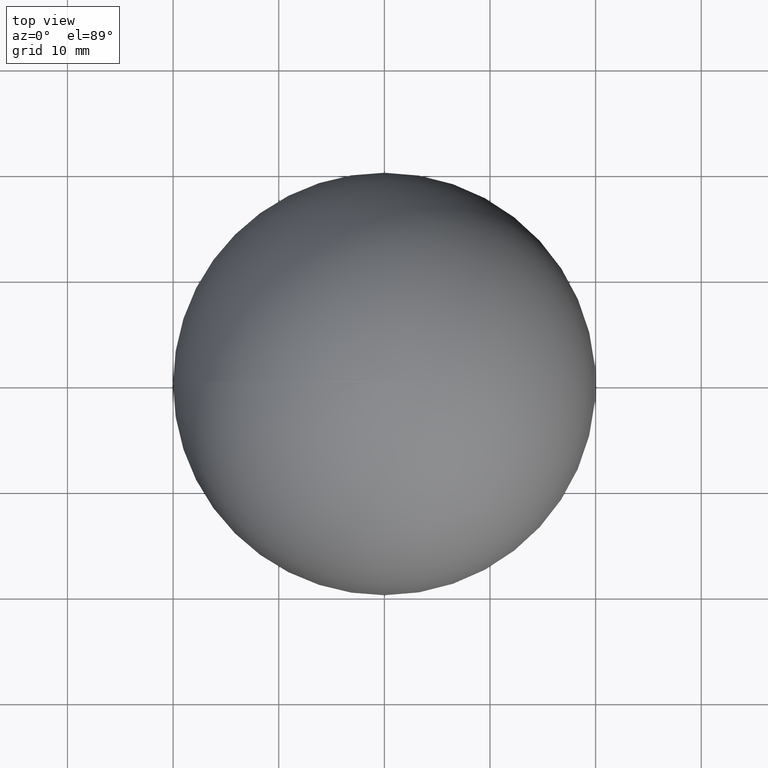
[diagram: clean part render]
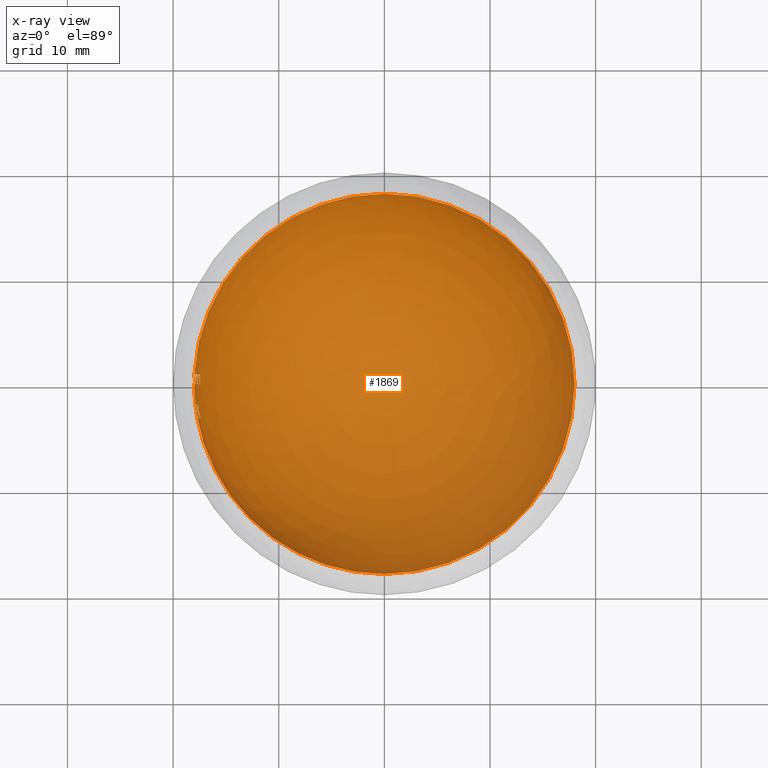
[diagram: x-ray — body ghosted, one internal face saturated and labeled with its STEP entity id]
A machine part, top view, then the same camera in x-ray: the body is ghosted and one INTERNAL B-rep face — a face not visible from any outside direction — is saturated and labeled: STEP entity #1869.
In plain terms, the highlighted spherical surface has radius 18 mm.
Its self-contained STEP definition (entity closure, byte-faithful):
#3 = CARTESIAN_POINT ( 'NONE',  ( -17.98380784051617500, 0.7502357939369659300, -0.1407189002403848300 ) ) ;
#13 = AXIS2_PLACEMENT_3D ( 'NONE', #8692, #1588, #3738 ) ;
#14 = B_SPLINE_CURVE_WITH_KNOTS ( 'NONE', 3,
 ( #4351, #8653, #6509, #862, #7862, #8595, #5813, #2270, #1551, #2183 ),
 .UNSPECIFIED., .F., .F.,
 ( 4, 2, 2, 2, 4 ),
 ( 0.0000000000000000000, 0.0001136032513177883700, 0.0002272065026355767500, 0.0003408097539533651500, 0.0004544130052711533900 ),
 .UNSPECIFIED. ) ;
#20 = CARTESIAN_POINT ( 'NONE',  ( -17.53255644043754600, 0.9837072649572650200, -3.954969618055557100 ) ) ;
#29 = DIRECTION ( 'NONE',  ( 1.224646799147353200E-016, -1.499759782661855400E-032, -1.000000000000000000 ) ) ;
#31 = VERTEX_POINT ( 'NONE', #1266 ) ;
#41 = CARTESIAN_POINT ( 'NONE',  ( -17.98941939601566600, 0.5945927151487913100, -0.1739419022031412100 ) ) ;
#43 = ORIENTED_EDGE ( 'NONE', *, *, #8353, .F. ) ;
#54 = EDGE_CURVE ( 'NONE', #2112, #8734, #1283, .T. ) ;
#61 = ORIENTED_EDGE ( 'NONE', *, *, #7948, .F. ) ;
#69 = CARTESIAN_POINT ( 'NONE',  ( -17.62126762388025400, 0.6454466552491469100, -3.616044775669356800 ) ) ;
#74 = DIRECTION ( 'NONE',  ( -0.0000000000000000000, -1.000000000000000000, 0.0000000000000000000 ) ) ;
#75 = CARTESIAN_POINT ( 'NONE',  ( -17.98306273835593000, 0.7470884447460407500, -0.2332210383773455400 ) ) ;
#107 = CIRCLE ( 'NONE', #5491, 17.71380479112809400 ) ;
#138 = CARTESIAN_POINT ( 'NONE',  ( -17.99420251198282400, 0.4308187911836337000, -0.1614703863136705600 ) ) ;
#145 = CARTESIAN_POINT ( 'NONE',  ( -17.72442512491126000, 0.6566789793696694600, -3.068202595605165500 ) ) ;
#151 = VERTEX_POINT ( 'NONE', #7721 ) ;
#156 = EDGE_CURVE ( 'NONE', #9149, #3085, #1169, .T. ) ;
#171 = DIRECTION ( 'NONE',  ( 0.0000000000000000000, 0.0000000000000000000, -1.000000000000000000 ) ) ;
#176 = EDGE_CURVE ( 'NONE', #7772, #5703, #9173, .T. ) ;
#189 = CIRCLE ( 'NONE', #3865, 17.71239298509627600 ) ;
#225 = EDGE_CURVE ( 'NONE', #31, #3921, #742, .T. ) ;
#232 = DIRECTION ( 'NONE',  ( 0.0000000000000000000, 1.000000000000000000, 0.0000000000000000000 ) ) ;
#238 = CARTESIAN_POINT ( 'NONE',  ( 0.0000000000000000000, 0.0000000000000000000, -2.238782051282052400 ) ) ;
#252 = CIRCLE ( 'NONE', #3613, 17.66267503896174100 ) ;
#263 = ORIENTED_EDGE ( 'NONE', *, *, #4066, .F. ) ;
#269 = DIRECTION ( 'NONE',  ( -0.0000000000000000000, -0.0000000000000000000, -1.000000000000000000 ) ) ;
#273 = ORIENTED_EDGE ( 'NONE', *, *, #2800, .F. ) ;
#282 = DIRECTION ( 'NONE',  ( -0.0000000000000000000, -1.000000000000000000, 0.0000000000000000000 ) ) ;
#289 = CARTESIAN_POINT ( 'NONE',  ( -17.75747998917270100, 0.8649839743589744500, -2.814908019497862800 ) ) ;
#290 = EDGE_CURVE ( 'NONE', #4028, #5888, #189, .T. ) ;
#303 = CARTESIAN_POINT ( 'NONE',  ( -17.96027085701464500, 0.5526972564911629700, -1.061908223955384800 ) ) ;
#313 = CIRCLE ( 'NONE', #3735, 17.71239298509627600 ) ;
#326 = CARTESIAN_POINT ( 'NONE',  ( -17.95748422891541200, 0.6189507999519983100, -1.072375427431585500 ) ) ;
#328 = EDGE_CURVE ( 'NONE', #151, #488, #7002, .T. ) ;
#352 = ORIENTED_EDGE ( 'NONE', *, *, #4795, .F. ) ;
#360 = CARTESIAN_POINT ( 'NONE',  ( 0.0000000000000000000, -1.881944444444444400, 0.0000000000000000000 ) ) ;
#362 = CARTESIAN_POINT ( 'NONE',  ( -17.93416250915587900, 0.8860829322064441800, -1.258994849860944000 ) ) ;
#368 = AXIS2_PLACEMENT_3D ( 'NONE', #1561, #7964, #7278 ) ;
#394 = CARTESIAN_POINT ( 'NONE',  ( 0.0000000000000000000, 0.0000000000000000000, -3.587139423076924200 ) ) ;
#399 = EDGE_CURVE ( 'NONE', #6750, #1467, #4275, .T. ) ;
#408 = VERTEX_POINT ( 'NONE', #3675 ) ;
#436 = CARTESIAN_POINT ( 'NONE',  ( -17.36948343476137100, -3.204861111111110700, -3.468416132478630700 ) ) ;
#437 = CARTESIAN_POINT ( 'NONE',  ( -17.74800873515423300, 0.9837072649572650200, -2.835578592414529800 ) ) ;
#438 = DIRECTION ( 'NONE',  ( -0.0000000000000000000, -0.0000000000000000000, -1.000000000000000000 ) ) ;
#439 = CARTESIAN_POINT ( 'NONE',  ( -17.78809345304236800, 0.9178373919619350300, -2.596653583086308400 ) ) ;
#453 = DIRECTION ( 'NONE',  ( -1.000000000000000000, 3.463895836830488400E-014, 0.0000000000000000000 ) ) ;
#471 = DIRECTION ( 'NONE',  ( 0.0000000000000000000, -0.7209840770893445300, -0.6929516293246058600 ) ) ;
#481 = DIRECTION ( 'NONE',  ( 1.000000000000000000, 0.0000000000000000000, 0.0000000000000000000 ) ) ;
#483 = AXIS2_PLACEMENT_3D ( 'NONE', #6568, #3648, #8638 ) ;
#488 = VERTEX_POINT ( 'NONE', #1531 ) ;
#511 = ORIENTED_EDGE ( 'NONE', *, *, #54, .F. ) ;
#514 = CARTESIAN_POINT ( 'NONE',  ( 0.0000000000000000000, 0.0000000000000000000, -1.958934294871793600 ) ) ;
#538 = CIRCLE ( 'NONE', #1301, 18.00000000000000400 ) ;
#567 = CARTESIAN_POINT ( 'NONE',  ( -17.48575257916055400, 0.9197183083326220300, -4.172049060638045100 ) ) ;
#577 = DIRECTION ( 'NONE',  ( -0.0000000000000000000, -0.0000000000000000000, 1.000000000000000000 ) ) ;
#581 = B_SPLINE_CURVE_WITH_KNOTS ( 'NONE', 3,
 ( #628, #6269, #2001, #9116, #7678, #6304, #2032, #6999, #2155, #1501 ),
 .UNSPECIFIED., .F., .F.,
 ( 4, 2, 2, 2, 4 ),
 ( 0.0000000000000000000, 0.0001970675359502486100, 0.0003941350719004972100, 0.0005912026078507458500, 0.0007882701438009944300 ),
 .UNSPECIFIED. ) ;
#586 = EDGE_CURVE ( 'NONE', #2391, #3996, #3818, .T. ) ;
#601 = VERTEX_POINT ( 'NONE', #5352 ) ;
#610 = CARTESIAN_POINT ( 'NONE',  ( 0.0000000000000000000, 0.0000000000000000000, -1.085470085470086500 ) ) ;
#611 = CARTESIAN_POINT ( 'NONE',  ( -17.97783377204167400, 0.8914581368059481000, -0.06638462884766789500 ) ) ;
#612 = ORIENTED_EDGE ( 'NONE', *, *, #5330, .F. ) ;
#616 = CIRCLE ( 'NONE', #2584, 18.00000000000000400 ) ;
#623 = CARTESIAN_POINT ( 'NONE',  ( -17.97746603379698600, 0.8339207124060763500, -0.3406571097198753400 ) ) ;
#628 = CARTESIAN_POINT ( 'NONE',  ( -17.96218580514519300, 0.4860234708867521300, -1.060029380341880100 ) ) ;
#661 = CARTESIAN_POINT ( 'NONE',  ( -17.97743998062778200, 0.8758053209826877100, -0.2239429487107958100 ) ) ;
#664 = CARTESIAN_POINT ( 'NONE',  ( -17.75747998917270100, 0.8649839743589744500, -2.814908019497862800 ) ) ;
#669 = ORIENTED_EDGE ( 'NONE', *, *, #3410, .F. ) ;
#670 = CIRCLE ( 'NONE', #8418, 17.80709234558175400 ) ;
#680 = AXIS2_PLACEMENT_3D ( 'NONE', #360, #1633, #6614 ) ;
#681 = DIRECTION ( 'NONE',  ( -0.0000000000000000000, -1.000000000000000000, 0.0000000000000000000 ) ) ;
#684 = FACE_BOUND ( 'NONE', #3939, .T. ) ;
#695 = B_SPLINE_CURVE_WITH_KNOTS ( 'NONE', 3,
 ( #4959, #5571, #8570, #2864, #4268, #661, #2736, #3 ),
 .UNSPECIFIED., .F., .F.,
 ( 4, 2, 2, 4 ),
 ( 0.0000000000000000000, 0.0001111103183225580800, 0.0002222206366451161500, 0.0004444412732902325200 ),
 .UNSPECIFIED. ) ;
#705 = CARTESIAN_POINT ( 'NONE',  ( -17.49687694890981500, 0.4914596527544314300, -4.197512681645126700 ) ) ;
#710 = DIRECTION ( 'NONE',  ( -1.000000000000000000, -5.329070518200749500E-014, 0.0000000000000000000 ) ) ;
#728 = VERTEX_POINT ( 'NONE', #9070 ) ;
#742 = CIRCLE ( 'NONE', #2597, 17.99960846186020500 ) ;
#756 = CARTESIAN_POINT ( 'NONE',  ( -17.63548267755608700, 0.3495446881677349300, -3.587139423076924200 ) ) ;
#759 = CARTESIAN_POINT ( 'NONE',  ( -17.98072703448273700, 0.7891781272251308100, -0.2714355617072868900 ) ) ;
#769 = CIRCLE ( 'NONE', #2984, 17.47479181170050900 ) ;
#775 = DIRECTION ( 'NONE',  ( -0.0000000000000000000, -0.0000000000000000000, 1.000000000000000000 ) ) ;
#781 = ORIENTED_EDGE ( 'NONE', *, *, #6581, .T. ) ;
#786 = DIRECTION ( 'NONE',  ( -0.0000000000000000000, -1.000000000000000000, 0.0000000000000000000 ) ) ;
#804 = AXIS2_PLACEMENT_3D ( 'NONE', #2443, #232, #5983 ) ;
#847 = DIRECTION ( 'NONE',  ( 0.0000000000000000000, 0.0000000000000000000, -1.000000000000000000 ) ) ;
#855 = VERTEX_POINT ( 'NONE', #20 ) ;
#862 = CARTESIAN_POINT ( 'NONE',  ( -17.88172655722671000, 0.8976158941171360500, -1.854610396305092200 ) ) ;
#866 = CARTESIAN_POINT ( 'NONE',  ( -17.59545998026724700, 0.8974723951130859600, -3.687233373609808000 ) ) ;
#867 = B_SPLINE_CURVE_WITH_KNOTS ( 'NONE', 3,
 ( #8641, #138, #6463, #41, #4993, #75, #759, #623, #2026, #6990, #4200, #2057 ),
 .UNSPECIFIED., .F., .F.,
 ( 4, 2, 2, 2, 2, 4 ),
 ( 5.421010862427522200E-020, 0.0001642364387548690600, 0.0003284728775097380600, 0.0004927093162646072000, 0.0005748275356420415500, 0.0006569457550194759000 ),
 .UNSPECIFIED. ) ;
#885 = VERTEX_POINT ( 'NONE', #1365 ) ;
#894 = VERTEX_POINT ( 'NONE', #5680 ) ;
#896 = AXIS2_PLACEMENT_3D ( 'NONE', #6985, #5587, #4854 ) ;
#898 = ORIENTED_EDGE ( 'NONE', *, *, #3519, .F. ) ;
#907 = DIRECTION ( 'NONE',  ( 0.0000000000000000000, 0.7210343373407116500, 0.6928993320646521500 ) ) ;
#919 = DIRECTION ( 'NONE',  ( 0.0000000000000000000, 0.0000000000000000000, 1.000000000000000000 ) ) ;
#930 = AXIS2_PLACEMENT_3D ( 'NONE', #7624, #5478, #7554 ) ;
#931 = VERTEX_POINT ( 'NONE', #1575 ) ;
#953 = CARTESIAN_POINT ( 'NONE',  ( 0.0000000000000000000, -3.204861111111110700, 0.0000000000000000000 ) ) ;
#964 = EDGE_CURVE ( 'NONE', #1318, #2478, #7715, .T. ) ;
#974 = CARTESIAN_POINT ( 'NONE',  ( -17.72498013299193800, 0.6199817454587764900, -3.072572524829734400 ) ) ;
#1000 = CARTESIAN_POINT ( 'NONE',  ( -17.49408662030950600, 0.6199761810183414000, -4.191964080962240900 ) ) ;
#1001 = CARTESIAN_POINT ( 'NONE',  ( -17.89230600068447800, 0.1672196347489316400, -1.958934294871794300 ) ) ;
#1002 = EDGE_CURVE ( 'NONE', #1035, #2343, #7394, .T. ) ;
#1035 = VERTEX_POINT ( 'NONE', #1786 ) ;
#1051 = ORIENTED_EDGE ( 'NONE', *, *, #8304, .F. ) ;
#1052 = EDGE_LOOP ( 'NONE', ( #5584, #6618, #4202, #2368, #61, #5783, #4264, #7327, #3657 ) ) ;
#1056 = EDGE_CURVE ( 'NONE', #3996, #1688, #1636, .T. ) ;
#1070 = CIRCLE ( 'NONE', #4873, 17.99927884406808300 ) ;
#1084 = DIRECTION ( 'NONE',  ( 0.0000000000000000000, 0.0000000000000000000, 1.000000000000000000 ) ) ;
#1103 = CIRCLE ( 'NONE', #4663, 17.71239298509627600 ) ;
#1128 = CIRCLE ( 'NONE', #8566, 17.87471260891340900 ) ;
#1129 = DIRECTION ( 'NONE',  ( -1.000000000000000000, 0.0000000000000000000, 0.0000000000000000000 ) ) ;
#1142 = AXIS2_PLACEMENT_3D ( 'NONE', #8131, #3750, #3780 ) ;
#1151 = CARTESIAN_POINT ( 'NONE',  ( -17.75855327082158700, -2.560363247863247400, -1.441639957264958700 ) ) ;
#1161 = EDGE_CURVE ( 'NONE', #7496, #6583, #6029, .T. ) ;
#1165 = EDGE_CURVE ( 'NONE', #8922, #8109, #4660, .T. ) ;
#1166 = VERTEX_POINT ( 'NONE', #9044 ) ;
#1167 = CARTESIAN_POINT ( 'NONE',  ( -17.97620029716551600, 0.6031872179632991000, -0.7028124962748078000 ) ) ;
#1169 = CIRCLE ( 'NONE', #6048, 18.00000000000000400 ) ;
#1179 = CIRCLE ( 'NONE', #6247, 18.00000000000000400 ) ;
#1193 = CIRCLE ( 'NONE', #1590, 17.96724115421033800 ) ;
#1212 = AXIS2_PLACEMENT_3D ( 'NONE', #3727, #3697, #4406 ) ;
#1227 = CARTESIAN_POINT ( 'NONE',  ( 0.0000000000000000000, 0.0000000000000000000, -0.4579326923076935700 ) ) ;
#1242 = CARTESIAN_POINT ( 'NONE',  ( -17.98380784051617500, 0.7502357939369659300, -0.1407189002403848300 ) ) ;
#1247 = VERTEX_POINT ( 'NONE', #8685 ) ;
#1248 = CARTESIAN_POINT ( 'NONE',  ( -17.73482205214051900, 0.0000000000000000000, -3.078325320512819400 ) ) ;
#1256 = AXIS2_PLACEMENT_3D ( 'NONE', #4493, #8011, #4561 ) ;
#1260 = ORIENTED_EDGE ( 'NONE', *, *, #2882, .F. ) ;
#1265 = CARTESIAN_POINT ( 'NONE',  ( -17.50172514954675800, 0.9589110209764750700, -4.095236384049228700 ) ) ;
#1266 = CARTESIAN_POINT ( 'NONE',  ( -17.78614131817651900, -2.763888888888888400, -0.1187232905982906500 ) ) ;
#1273 = VERTEX_POINT ( 'NONE', #6059 ) ;
#1276 = DIRECTION ( 'NONE',  ( -0.0000000000000000000, -1.000000000000000000, 0.0000000000000000000 ) ) ;
#1278 = CARTESIAN_POINT ( 'NONE',  ( -17.98714947417280600, 0.6808911435771420900, -0.03300697543427195300 ) ) ;
#1283 = CIRCLE ( 'NONE', #3479, 17.97402015784463500 ) ;
#1301 = AXIS2_PLACEMENT_3D ( 'NONE', #7652, #8281, #6240 ) ;
#1304 = CARTESIAN_POINT ( 'NONE',  ( -17.97546888442860100, 0.9394244966675307000, 1.056454664858698100E-011 ) ) ;
#1318 = VERTEX_POINT ( 'NONE', #8145 ) ;
#1331 = ORIENTED_EDGE ( 'NONE', *, *, #8535, .F. ) ;
#1336 = AXIS2_PLACEMENT_3D ( 'NONE', #238, #7420, #8759 ) ;
#1340 = EDGE_CURVE ( 'NONE', #3145, #5656, #4957, .T. ) ;
#1347 = EDGE_CURVE ( 'NONE', #1273, #4167, #2585, .T. ) ;
#1365 = CARTESIAN_POINT ( 'NONE',  ( -17.69706231835471400, -1.881944444444444000, -2.696714743589743200 ) ) ;
#1369 = CARTESIAN_POINT ( 'NONE',  ( -17.70692327632443200, 0.4937086838942305600, -3.197048611111109800 ) ) ;
#1375 = CARTESIAN_POINT ( 'NONE',  ( -17.54346299188166100, 0.8649839743589744500, -3.934299045138890600 ) ) ;
#1383 = ORIENTED_EDGE ( 'NONE', *, *, #1165, .F. ) ;
#1401 = VERTEX_POINT ( 'NONE', #8787 ) ;
#1412 = AXIS2_PLACEMENT_3D ( 'NONE', #4635, #2535, #6094 ) ;
#1416 = EDGE_CURVE ( 'NONE', #931, #4565, #5552, .T. ) ;
#1426 = DIRECTION ( 'NONE',  ( 0.0000000000000000000, 0.0000000000000000000, 1.000000000000000000 ) ) ;
#1438 = CARTESIAN_POINT ( 'NONE',  ( -17.63369108762436700, 0.4365309914252932800, -3.587471150623302100 ) ) ;
#1467 = VERTEX_POINT ( 'NONE', #1151 ) ;
#1501 = CARTESIAN_POINT ( 'NONE',  ( -17.93190973923586600, -0.01696047008547008400, -1.564073350694444200 ) ) ;
#1510 = CARTESIAN_POINT ( 'NONE',  ( 0.0000000000000000000, 0.0000000000000000000, 0.0000000000000000000 ) ) ;
#1514 = CARTESIAN_POINT ( 'NONE',  ( -17.65362680845227300, -3.204861111111110700, -1.441639957264958700 ) ) ;
#1531 = CARTESIAN_POINT ( 'NONE',  ( -17.96627393721210500, 0.9837072649572650200, -0.4952987279647437200 ) ) ;
#1542 = CIRCLE ( 'NONE', #2938, 17.90134869522474800 ) ;
#1551 = CARTESIAN_POINT ( 'NONE',  ( -17.90131245572710100, 0.9826578895977383700, -1.605882696876488500 ) ) ;
#1555 = CARTESIAN_POINT ( 'NONE',  ( -17.85239974348211000, -1.881944444444444400, -1.322916666666668300 ) ) ;
#1561 = CARTESIAN_POINT ( 'NONE',  ( 0.0000000000000000000, -2.560363247863247400, 0.0000000000000000000 ) ) ;
#1562 = CARTESIAN_POINT ( 'NONE',  ( 0.0000000000000000000, 0.0000000000000000000, -3.078325320512819400 ) ) ;
#1575 = CARTESIAN_POINT ( 'NONE',  ( -17.61285606046386200, -2.475560897435896500, -2.767471704727563900 ) ) ;
#1580 = EDGE_CURVE ( 'NONE', #885, #7619, #8775, .T. ) ;
#1584 = VERTEX_POINT ( 'NONE', #1001 ) ;
#1588 = DIRECTION ( 'NONE',  ( -0.0000000000000000000, -0.0000000000000000000, -1.000000000000000000 ) ) ;
#1590 = AXIS2_PLACEMENT_3D ( 'NONE', #610, #4217, #9164 ) ;
#1599 = CARTESIAN_POINT ( 'NONE',  ( 0.0000000000000000000, 0.9667467948717947100, 0.0000000000000000000 ) ) ;
#1613 = CARTESIAN_POINT ( 'NONE',  ( -17.80380910034584500, 0.9667467948717944900, -2.467748397435896500 ) ) ;
#1633 = DIRECTION ( 'NONE',  ( 0.0000000000000000000, 1.000000000000000000, 0.0000000000000000000 ) ) ;
#1635 = CIRCLE ( 'NONE', #2806, 17.90134869522474800 ) ;
#1636 = B_SPLINE_CURVE_WITH_KNOTS ( 'NONE', 3,
 ( #6666, #3092, #8043, #6051, #8788, #8854, #7355, #2476, #8755, #6758 ),
 .UNSPECIFIED., .F., .F.,
 ( 4, 2, 2, 2, 4 ),
 ( 0.0000000000000000000, 0.0001121440822749354300, 0.0002242881645498708600, 0.0003364322468248062600, 0.0004485763290997417200 ),
 .UNSPECIFIED. ) ;
#1638 = CARTESIAN_POINT ( 'NONE',  ( 0.0000000000000000000, 0.0000000000000000000, -2.696714743589743600 ) ) ;
#1642 = VERTEX_POINT ( 'NONE', #4185 ) ;
#1651 = FACE_BOUND ( 'NONE', #2427, .T. ) ;
#1654 = CARTESIAN_POINT ( 'NONE',  ( -17.72464661219103400, 0.7027414882032943000, -3.056779191358356900 ) ) ;
#1661 = VERTEX_POINT ( 'NONE', #2708 ) ;
#1677 = VERTEX_POINT ( 'NONE', #7008 ) ;
#1685 = ORIENTED_EDGE ( 'NONE', *, *, #7046, .F. ) ;
#1686 = CARTESIAN_POINT ( 'NONE',  ( -17.72502520892314600, 0.7304569417499182600, -3.048073139765716800 ) ) ;
#1688 = VERTEX_POINT ( 'NONE', #664 ) ;
#1695 = CARTESIAN_POINT ( 'NONE',  ( -17.72899075779818600, 0.4547526041666666900, -3.078325320512820300 ) ) ;
#1701 = CARTESIAN_POINT ( 'NONE',  ( -17.40032748391652000, -3.204861111111110700, -3.310206747462605600 ) ) ;
#1703 = DIRECTION ( 'NONE',  ( -0.0000000000000000000, -0.0000000000000000000, 1.000000000000000000 ) ) ;
#1714 = ORIENTED_EDGE ( 'NONE', *, *, #5334, .F. ) ;
#1715 = CARTESIAN_POINT ( 'NONE',  ( 0.0000000000000000000, 0.0000000000000000000, -2.696714743589743200 ) ) ;
#1741 = CARTESIAN_POINT ( 'NONE',  ( -17.96627393721210500, 0.9837072649572650200, -0.4952987279647437200 ) ) ;
#1744 = EDGE_CURVE ( 'NONE', #4101, #5470, #7230, .T. ) ;
#1773 = CARTESIAN_POINT ( 'NONE',  ( -17.46781613704822800, 0.4937086838942305600, -4.316439636752137200 ) ) ;
#1786 = CARTESIAN_POINT ( 'NONE',  ( -17.50369039594886900, 0.0000000000000000000, -4.197716346153846700 ) ) ;
#1791 = ORIENTED_EDGE ( 'NONE', *, *, #1002, .F. ) ;
#1799 = AXIS2_PLACEMENT_3D ( 'NONE', #1638, #269, #5214 ) ;
#1826 = CARTESIAN_POINT ( 'NONE',  ( 0.0000000000000000000, 0.0000000000000000000, -1.322916666666668300 ) ) ;
#1836 = CARTESIAN_POINT ( 'NONE',  ( -17.61082112754941800, -2.566458416800212900, -2.696714743589743600 ) ) ;
#1842 = DIRECTION ( 'NONE',  ( 0.0000000000000000000, 1.000000000000000000, 0.0000000000000000000 ) ) ;
#1857 = EDGE_CURVE ( 'NONE', #5260, #31, #2875, .T. ) ;
#1860 = CARTESIAN_POINT ( 'NONE',  ( -17.97107594177710900, 0.8573797740413575700, -0.5539684475061164000 ) ) ;
#1863 = CARTESIAN_POINT ( 'NONE',  ( -17.74800873515423300, 0.9837072649572650200, -2.835578592414529800 ) ) ;
#1867 = DIRECTION ( 'NONE',  ( 1.000000000000000000, 0.0000000000000000000, 0.0000000000000000000 ) ) ;
#1869 = ADVANCED_FACE ( 'NONE', ( #3097, #3539, #1651, #3670, #6997, #684, #5115 ), #6869, .F. ) ;
#1896 = CARTESIAN_POINT ( 'NONE',  ( -17.70954520250475300, 0.8796898135089168400, -3.098633503506401900 ) ) ;
#1927 = CARTESIAN_POINT ( 'NONE',  ( -17.98623311847780900, 0.0000000000000000000, -0.7038595085470086300 ) ) ;
#1932 = CARTESIAN_POINT ( 'NONE',  ( -17.97859316999598900, 0.5241845285790598400, -0.7038595085470088500 ) ) ;
#1933 = EDGE_CURVE ( 'NONE', #5997, #1166, #4662, .T. ) ;
#1956 = CARTESIAN_POINT ( 'NONE',  ( -17.90462133221094400, 0.06460233323427247400, -1.849804226663146900 ) ) ;
#1996 = CARTESIAN_POINT ( 'NONE',  ( 0.0000000000000000000, 0.0000000000000000000, 0.0000000000000000000 ) ) ;
#2001 = CARTESIAN_POINT ( 'NONE',  ( -17.96473542235520800, 0.3537404666709055800, -1.071233777395610000 ) ) ;
#2019 = CARTESIAN_POINT ( 'NONE',  ( -17.57033637086510000, -3.204861111111110700, -2.238782051282052400 ) ) ;
#2026 = CARTESIAN_POINT ( 'NONE',  ( -17.97641796205582700, 0.8455475304738021600, -0.3663419032677796600 ) ) ;
#2028 = CARTESIAN_POINT ( 'NONE',  ( -17.58457721874578500, 0.8159442279281982100, -3.757436447211963700 ) ) ;
#2031 = CARTESIAN_POINT ( 'NONE',  ( -17.76080347379819500, -1.881944444444444000, -2.238782051282052400 ) ) ;
#2032 = CARTESIAN_POINT ( 'NONE',  ( -17.95234067247371000, 0.04462978095788013000, -1.309881041981972900 ) ) ;
#2041 = CARTESIAN_POINT ( 'NONE',  ( -17.86840898909509100, -1.881944444444444000, -1.085470085470086500 ) ) ;
#2042 = VERTEX_POINT ( 'NONE', #436 ) ;
#2043 = CIRCLE ( 'NONE', #4509, 18.00000000000000400 ) ;
#2057 = CARTESIAN_POINT ( 'NONE',  ( -17.97293884812770400, 0.8649839743589744500, -0.4746281550480772000 ) ) ;
#2059 = CARTESIAN_POINT ( 'NONE',  ( -17.61697378740734300, 0.6799492610088611100, -3.630614195868762600 ) ) ;
#2065 = DIRECTION ( 'NONE',  ( -1.000000000000000000, 7.815970093361100800E-014, 0.0000000000000000000 ) ) ;
#2068 = DIRECTION ( 'NONE',  ( -0.0000000000000000000, -1.000000000000000000, 0.0000000000000000000 ) ) ;
#2082 = CARTESIAN_POINT ( 'NONE',  ( -17.50590171485586000, -3.204861111111110700, -2.696714743589743200 ) ) ;
#2089 = VERTEX_POINT ( 'NONE', #1773 ) ;
#2100 = VERTEX_POINT ( 'NONE', #8807 ) ;
#2104 = DIRECTION ( 'NONE',  ( 0.0000000000000000000, 0.0000000000000000000, 1.000000000000000000 ) ) ;
#2112 = VERTEX_POINT ( 'NONE', #4639 ) ;
#2116 = EDGE_CURVE ( 'NONE', #4009, #885, #5990, .T. ) ;
#2122 = CARTESIAN_POINT ( 'NONE',  ( -17.59909589828254900, 0.7696075059595741700, -3.698780535498736200 ) ) ;
#2124 = ORIENTED_EDGE ( 'NONE', *, *, #6812, .F. ) ;
#2147 = CARTESIAN_POINT ( 'NONE',  ( -17.49503918526006200, 0.5648576746900045900, -4.195776413675934800 ) ) ;
#2151 = CARTESIAN_POINT ( 'NONE',  ( -17.84606626255339600, 0.0000000000000000000, -2.349025106837605600 ) ) ;
#2155 = CARTESIAN_POINT ( 'NONE',  ( -17.93770060057625700, -0.01515837936299275700, -1.497701374906713600 ) ) ;
#2183 = CARTESIAN_POINT ( 'NONE',  ( -17.90459089339161000, 0.9837072649572650200, -1.567783453525640700 ) ) ;
#2186 = CARTESIAN_POINT ( 'NONE',  ( -17.63548267755608700, 0.3495446881677349300, -3.587139423076924200 ) ) ;
#2217 = DIRECTION ( 'NONE',  ( 1.000000000000000000, 0.0000000000000000000, 0.0000000000000000000 ) ) ;
#2218 = EDGE_CURVE ( 'NONE', #1661, #894, #3761, .T. ) ;
#2270 = CARTESIAN_POINT ( 'NONE',  ( -17.89798513284804900, 0.9804495181199104300, -1.643873684575583900 ) ) ;
#2284 = CARTESIAN_POINT ( 'NONE',  ( 0.0000000000000000000, 0.1151090138980606400, -0.1197829868165996300 ) ) ;
#2296 = ORIENTED_EDGE ( 'NONE', *, *, #5375, .F. ) ;
#2300 = CARTESIAN_POINT ( 'NONE',  ( 0.0000000000000000000, -3.204861111111110700, 0.0000000000000000000 ) ) ;
#2327 = ORIENTED_EDGE ( 'NONE', *, *, #4138, .F. ) ;
#2328 = DIRECTION ( 'NONE',  ( -0.0000000000000000000, -1.000000000000000000, 0.0000000000000000000 ) ) ;
#2334 = ORIENTED_EDGE ( 'NONE', *, *, #6459, .F. ) ;
#2343 = VERTEX_POINT ( 'NONE', #7622 ) ;
#2368 = ORIENTED_EDGE ( 'NONE', *, *, #5801, .F. ) ;
#2374 = VERTEX_POINT ( 'NONE', #6723 ) ;
#2381 = DIRECTION ( 'NONE',  ( 1.000000000000000000, 0.0000000000000000000, 0.0000000000000000000 ) ) ;
#2383 = CARTESIAN_POINT ( 'NONE',  ( -17.99927884406808000, 0.0000000000000000000, -0.1611244658119659900 ) ) ;
#2390 = DIRECTION ( 'NONE',  ( -1.000000000000000000, 2.131628207280300200E-014, 0.0000000000000000000 ) ) ;
#2391 = VERTEX_POINT ( 'NONE', #8075 ) ;
#2410 = CARTESIAN_POINT ( 'NONE',  ( -17.72531840150586600, 0.6016486373935289200, -3.074320372799336900 ) ) ;
#2414 = CARTESIAN_POINT ( 'NONE',  ( -17.90459089339161000, 0.9837072649572650200, -1.567783453525640700 ) ) ;
#2427 = EDGE_LOOP ( 'NONE', ( #5454, #511, #4061, #4613, #8586, #8277, #1791, #6126, #2682, #8480, #6401, #3205, #3566, #8261 ) ) ;
#2428 = DIRECTION ( 'NONE',  ( -0.0000000000000000000, -0.0000000000000000000, -1.000000000000000000 ) ) ;
#2430 = CARTESIAN_POINT ( 'NONE',  ( -17.72790094530802200, 0.7802761627270522500, -3.018862873550147300 ) ) ;
#2443 = CARTESIAN_POINT ( 'NONE',  ( 0.0000000000000000000, -1.881944444444444400, 0.0000000000000000000 ) ) ;
#2456 = VERTEX_POINT ( 'NONE', #1836 ) ;
#2459 = AXIS2_PLACEMENT_3D ( 'NONE', #5332, #8035, #1084 ) ;
#2476 = CARTESIAN_POINT ( 'NONE',  ( -17.76955625202282000, 0.8591904519665681800, -2.739720749691537000 ) ) ;
#2478 = VERTEX_POINT ( 'NONE', #2604 ) ;
#2484 = CARTESIAN_POINT ( 'NONE',  ( -17.81709208620008400, 0.6089868790064102400, -2.486033904246794700 ) ) ;
#2489 = DIRECTION ( 'NONE',  ( 1.000000000000000000, 0.0000000000000000000, 0.0000000000000000000 ) ) ;
#2499 = CARTESIAN_POINT ( 'NONE',  ( 0.0000000000000000000, 0.1939288023721398300, -0.2017739372885175900 ) ) ;
#2501 = CARTESIAN_POINT ( 'NONE',  ( -17.77758711462464100, -2.424679487179486800, -1.441639957264958700 ) ) ;
#2508 = CIRCLE ( 'NONE', #5707, 17.99995005938462700 ) ;
#2535 = DIRECTION ( 'NONE',  ( -0.0000000000000000000, -0.0000000000000000000, -1.000000000000000000 ) ) ;
#2537 = CARTESIAN_POINT ( 'NONE',  ( -17.96386543839304700, 0.9687787131140539500, -0.6014303272816421400 ) ) ;
#2541 = CARTESIAN_POINT ( 'NONE',  ( -17.70249582520970600, 0.7249138814580126100, -3.177974468180689600 ) ) ;
#2545 = CARTESIAN_POINT ( 'NONE',  ( -17.77114185865052000, 0.9635701443518933700, -2.694319616778559900 ) ) ;
#2554 = CARTESIAN_POINT ( 'NONE',  ( -17.62114007190091100, 0.7923719618055555800, -3.587139423076925100 ) ) ;
#2562 = DIRECTION ( 'NONE',  ( -1.000000000000000000, 0.0000000000000000000, 0.0000000000000000000 ) ) ;
#2569 = EDGE_CURVE ( 'NONE', #8902, #7587, #1542, .T. ) ;
#2574 = EDGE_CURVE ( 'NONE', #2374, #6128, #7436, .T. ) ;
#2584 = AXIS2_PLACEMENT_3D ( 'NONE', #3533, #29, #4975 ) ;
#2585 = CIRCLE ( 'NONE', #1256, 17.87471260891340900 ) ;
#2597 = AXIS2_PLACEMENT_3D ( 'NONE', #3291, #7490, #2489 ) ;
#2604 = CARTESIAN_POINT ( 'NONE',  ( -17.72899075779818600, 0.4547526041666666900, -3.078325320512820300 ) ) ;
#2618 = CIRCLE ( 'NONE', #3644, 17.94217585003605800 ) ;
#2628 = EDGE_CURVE ( 'NONE', #894, #4573, #14, .T. ) ;
#2636 = ORIENTED_EDGE ( 'NONE', *, *, #6547, .F. ) ;
#2648 = CIRCLE ( 'NONE', #3787, 17.95132004876119700 ) ;
#2659 = ORIENTED_EDGE ( 'NONE', *, *, #4666, .F. ) ;
#2671 = EDGE_CURVE ( 'NONE', #5656, #5944, #4427, .T. ) ;
#2678 = CARTESIAN_POINT ( 'NONE',  ( -17.49571795091518200, 0.7308044350424834900, -4.167328276777268100 ) ) ;
#2682 = ORIENTED_EDGE ( 'NONE', *, *, #3683, .F. ) ;
#2683 = DIRECTION ( 'NONE',  ( -0.0000000000000000000, -1.000000000000000000, 0.0000000000000000000 ) ) ;
#2708 = CARTESIAN_POINT ( 'NONE',  ( -17.86695209214432000, 0.9667467948717944900, -1.958934294871793600 ) ) ;
#2723 = DIRECTION ( 'NONE',  ( 0.0000000000000000000, 0.0000000000000000000, -1.000000000000000000 ) ) ;
#2736 = CARTESIAN_POINT ( 'NONE',  ( -17.98079186092010000, 0.8157199728874784400, -0.1770340115245615000 ) ) ;
#2765 = CARTESIAN_POINT ( 'NONE',  ( -17.57674835321069700, 0.8344017609635551200, -3.789871133942162000 ) ) ;
#2771 = B_SPLINE_CURVE_WITH_KNOTS ( 'NONE', 3,
 ( #756, #1438, #4237, #5667 ),
 .UNSPECIFIED., .F., .F.,
 ( 4, 4 ),
 ( 1.084202172485504400E-019, 0.0002610127241517620700 ),
 .UNSPECIFIED. ) ;
#2798 = VERTEX_POINT ( 'NONE', #1701 ) ;
#2800 = EDGE_CURVE ( 'NONE', #4167, #7478, #1103, .T. ) ;
#2806 = AXIS2_PLACEMENT_3D ( 'NONE', #5889, #3687, #8671 ) ;
#2809 = ORIENTED_EDGE ( 'NONE', *, *, #2671, .F. ) ;
#2845 = CARTESIAN_POINT ( 'NONE',  ( -17.62469988556235400, 0.6089868790064102400, -3.605424929887822500 ) ) ;
#2864 = CARTESIAN_POINT ( 'NONE',  ( -17.97125852579700500, 0.9553994084325125900, -0.3499617833323913600 ) ) ;
#2875 = CIRCLE ( 'NONE', #5240, 17.78653755540624100 ) ;
#2882 = EDGE_CURVE ( 'NONE', #7478, #3576, #3087, .T. ) ;
#2892 = EDGE_CURVE ( 'NONE', #5888, #2456, #6214, .T. ) ;
#2893 = CARTESIAN_POINT ( 'NONE',  ( -17.60905597677683000, 0.8489520902699238000, -3.633426278845433000 ) ) ;
#2929 = CARTESIAN_POINT ( 'NONE',  ( -17.96218580514519300, 0.4860234708867521300, -1.060029380341880100 ) ) ;
#2934 = DIRECTION ( 'NONE',  ( -1.000000000000000000, 0.0000000000000000000, -1.224646799147353000E-016 ) ) ;
#2936 = DIRECTION ( 'NONE',  ( -1.000000000000000000, 0.0000000000000000000, -1.224646799147353000E-016 ) ) ;
#2938 = AXIS2_PLACEMENT_3D ( 'NONE', #4858, #6385, #2723 ) ;
#2958 = AXIS2_PLACEMENT_3D ( 'NONE', #8940, #6819, #481 ) ;
#2978 = CARTESIAN_POINT ( 'NONE',  ( -17.54072157040662100, 0.9825472860817248100, -3.919061751221150300 ) ) ;
#2984 = AXIS2_PLACEMENT_3D ( 'NONE', #7528, #3957, #1867 ) ;
#2985 = DIRECTION ( 'NONE',  ( -1.000000000000000000, -8.437694987151187200E-014, 0.0000000000000000000 ) ) ;
#2991 = DIRECTION ( 'NONE',  ( -0.0000000000000000000, -0.6928993320646520400, 0.7210343373407115400 ) ) ;
#3012 = CARTESIAN_POINT ( 'NONE',  ( 0.0000000000000000000, 0.0000000000000000000, -1.441639957264958700 ) ) ;
#3016 = EDGE_LOOP ( 'NONE', ( #5956, #7986, #5259, #9031, #7561, #898, #7651, #1714, #3251, #4220, #5016, #6458, #612, #43 ) ) ;
#3039 = DIRECTION ( 'NONE',  ( 0.0000000000000000000, 0.0000000000000000000, 1.000000000000000000 ) ) ;
#3040 = CARTESIAN_POINT ( 'NONE',  ( 0.0000000000000000000, 0.0000000000000000000, -3.587139423076924200 ) ) ;
#3054 = CARTESIAN_POINT ( 'NONE',  ( 0.0000000000000000000, -3.069177350427350100, 0.0000000000000000000 ) ) ;
#3056 = EDGE_CURVE ( 'NONE', #8491, #4582, #3416, .T. ) ;
#3069 = CARTESIAN_POINT ( 'NONE',  ( -17.91046988942733300, 0.9818184957115189100, -1.501828539521294900 ) ) ;
#3075 = AXIS2_PLACEMENT_3D ( 'NONE', #7780, #8505, #7812 ) ;
#3079 = CIRCLE ( 'NONE', #9188, 17.99417399185958600 ) ;
#3085 = VERTEX_POINT ( 'NONE', #6877 ) ;
#3087 = CIRCLE ( 'NONE', #1336, 17.86023109948069600 ) ;
#3092 = CARTESIAN_POINT ( 'NONE',  ( -17.81438136002899600, 0.6452159431187711700, -2.496586549197799900 ) ) ;
#3097 = FACE_OUTER_BOUND ( 'NONE', #3822, .T. ) ;
#3138 = DIRECTION ( 'NONE',  ( -1.000000000000000000, -2.602362769721365900E-013, 0.0000000000000000000 ) ) ;
#3145 = VERTEX_POINT ( 'NONE', #2041 ) ;
#3185 = CARTESIAN_POINT ( 'NONE',  ( -17.88070116285116400, -2.017628205128204800, -0.4579326923076935700 ) ) ;
#3205 = ORIENTED_EDGE ( 'NONE', *, *, #8492, .F. ) ;
#3223 = ORIENTED_EDGE ( 'NONE', *, *, #4314, .F. ) ;
#3226 = CARTESIAN_POINT ( 'NONE',  ( -17.82269777448269800, 0.5240999603313653000, -2.466652815122063500 ) ) ;
#3236 = ORIENTED_EDGE ( 'NONE', *, *, #8014, .F. ) ;
#3251 = ORIENTED_EDGE ( 'NONE', *, *, #964, .F. ) ;
#3267 = CARTESIAN_POINT ( 'NONE',  ( -17.81242163550754000, 0.7923719618055555800, -2.467748397435897400 ) ) ;
#3287 = ORIENTED_EDGE ( 'NONE', *, *, #6466, .F. ) ;
#3290 = CIRCLE ( 'NONE', #6654, 17.99417399185958600 ) ;
#3291 = CARTESIAN_POINT ( 'NONE',  ( 0.0000000000000000000, 0.0000000000000000000, -0.1187232905982906800 ) ) ;
#3294 = CARTESIAN_POINT ( 'NONE',  ( -17.73033224155521000, 0.9685598636843302200, -2.949245133434845300 ) ) ;
#3308 = CARTESIAN_POINT ( 'NONE',  ( -17.89230600068447800, 0.1672196347489316400, -1.958934294871794300 ) ) ;
#3310 = ORIENTED_EDGE ( 'NONE', *, *, #5232, .F. ) ;
#3316 = CARTESIAN_POINT ( 'NONE',  ( -17.84320485063268400, -1.881944444444444000, -1.441639957264958700 ) ) ;
#3320 = CARTESIAN_POINT ( 'NONE',  ( 0.0000000000000000000, 0.0000000000000000000, -1.958934294871793600 ) ) ;
#3322 = CARTESIAN_POINT ( 'NONE',  ( -17.70297875035468500, 0.7822854927062212700, -3.161636887593947800 ) ) ;
#3323 = CIRCLE ( 'NONE', #8386, 17.63894641863304000 ) ;
#3358 = EDGE_CURVE ( 'NONE', #2456, #2798, #5097, .T. ) ;
#3368 = CARTESIAN_POINT ( 'NONE',  ( 0.0000000000000000000, 0.0000000000000000000, 0.0000000000000000000 ) ) ;
#3374 = CARTESIAN_POINT ( 'NONE',  ( 0.0000000000000000000, 0.0000000000000000000, -2.577991452991452300 ) ) ;
#3398 = CIRCLE ( 'NONE', #1412, 17.87969068405655500 ) ;
#3407 = EDGE_CURVE ( 'NONE', #1688, #1318, #8766, .T. ) ;
#3410 = EDGE_CURVE ( 'NONE', #7679, #5997, #6091, .T. ) ;
#3416 = CIRCLE ( 'NONE', #6918, 18.00000000000000400 ) ;
#3441 = ORIENTED_EDGE ( 'NONE', *, *, #5666, .F. ) ;
#3465 = DIRECTION ( 'NONE',  ( -0.0000000000000000000, -0.0000000000000000000, -1.000000000000000000 ) ) ;
#3470 = CARTESIAN_POINT ( 'NONE',  ( -17.78387738184619200, -2.560363247863247400, -1.085470085470086500 ) ) ;
#3479 = AXIS2_PLACEMENT_3D ( 'NONE', #6111, #1842, #6814 ) ;
#3503 = DIRECTION ( 'NONE',  ( 0.0000000000000000000, 1.000000000000000000, 0.0000000000000000000 ) ) ;
#3510 = CIRCLE ( 'NONE', #930, 17.98119455260273700 ) ;
#3516 = CARTESIAN_POINT ( 'NONE',  ( 0.0000000000000000000, 0.0000000000000000000, 0.0000000000000000000 ) ) ;
#3519 = EDGE_CURVE ( 'NONE', #2100, #7496, #107, .T. ) ;
#3530 = DIRECTION ( 'NONE',  ( 0.0000000000000000000, 0.0000000000000000000, -1.000000000000000000 ) ) ;
#3533 = CARTESIAN_POINT ( 'NONE',  ( 0.0000000000000000000, 0.0000000000000000000, 0.0000000000000000000 ) ) ;
#3536 = EDGE_CURVE ( 'NONE', #5156, #7679, #3079, .T. ) ;
#3539 = FACE_BOUND ( 'NONE', #7674, .T. ) ;
#3540 = CARTESIAN_POINT ( 'NONE',  ( 0.0000000000000000000, 0.0000000000000000000, -0.1611244658119660400 ) ) ;
#3562 = AXIS2_PLACEMENT_3D ( 'NONE', #3012, #7218, #2217 ) ;
#3566 = ORIENTED_EDGE ( 'NONE', *, *, #4714, .F. ) ;
#3567 = CARTESIAN_POINT ( 'NONE',  ( -17.49778207505844600, 0.4547526041666666900, -4.197716346153848500 ) ) ;
#3576 = VERTEX_POINT ( 'NONE', #2031 ) ;
#3583 = CARTESIAN_POINT ( 'NONE',  ( -17.62469988556235400, 0.6089868790064102400, -3.605424929887822500 ) ) ;
#3586 = CARTESIAN_POINT ( 'NONE',  ( 0.0000000000000000000, -2.763888888888888400, 0.0000000000000000000 ) ) ;
#3592 = ORIENTED_EDGE ( 'NONE', *, *, #5770, .F. ) ;
#3613 = AXIS2_PLACEMENT_3D ( 'NONE', #7538, #4723, #453 ) ;
#3627 = DIRECTION ( 'NONE',  ( -0.0000000000000000000, -0.0000000000000000000, 1.000000000000000000 ) ) ;
#3633 = B_SPLINE_CURVE_WITH_KNOTS ( 'NONE', 3,
 ( #8445, #9153, #4091, #6335, #4208, #9054, #567, #1265, #6944, #7654, #4118, #9183 ),
 .UNSPECIFIED., .F., .F.,
 ( 4, 2, 2, 2, 2, 4 ),
 ( 0.0000000000000000000, 0.0001747436609096993800, 0.0003494873218193987600, 0.0005242309827290981700, 0.0006116028131839487200, 0.0006989746436387993700 ),
 .UNSPECIFIED. ) ;
#3636 = CARTESIAN_POINT ( 'NONE',  ( -17.80709234558175100, -2.628205128205127700, -2.180739864313802700E-015 ) ) ;
#3637 = AXIS2_PLACEMENT_3D ( 'NONE', #4515, #7282, #6603 ) ;
#3644 = AXIS2_PLACEMENT_3D ( 'NONE', #8076, #6692, #2381 ) ;
#3648 = DIRECTION ( 'NONE',  ( 0.0000000000000000000, 1.000000000000000000, 0.0000000000000000000 ) ) ;
#3657 = ORIENTED_EDGE ( 'NONE', *, *, #2218, .F. ) ;
#3670 = FACE_BOUND ( 'NONE', #1052, .T. ) ;
#3674 = CARTESIAN_POINT ( 'NONE',  ( -17.81108749314053000, -2.560363247863247400, -0.4579326923076935700 ) ) ;
#3675 = CARTESIAN_POINT ( 'NONE',  ( -17.98380784051617500, 0.7502357939369659300, -0.1407189002403848300 ) ) ;
#3679 = AXIS2_PLACEMENT_3D ( 'NONE', #8063, #282, #5258 ) ;
#3683 = EDGE_CURVE ( 'NONE', #1677, #601, #6327, .T. ) ;
#3687 = DIRECTION ( 'NONE',  ( 0.0000000000000000000, 1.000000000000000000, 0.0000000000000000000 ) ) ;
#3691 = VERTEX_POINT ( 'NONE', #7048 ) ;
#3697 = DIRECTION ( 'NONE',  ( -0.0000000000000000000, -0.0000000000000000000, 1.000000000000000000 ) ) ;
#3719 = EDGE_CURVE ( 'NONE', #3921, #9149, #670, .T. ) ;
#3727 = CARTESIAN_POINT ( 'NONE',  ( 0.0000000000000000000, 0.0000000000000000000, -0.3392094017094030000 ) ) ;
#3735 = AXIS2_PLACEMENT_3D ( 'NONE', #2300, #2328, #3039 ) ;
#3738 = DIRECTION ( 'NONE',  ( 1.000000000000000000, 0.0000000000000000000, 0.0000000000000000000 ) ) ;
#3747 = CARTESIAN_POINT ( 'NONE',  ( -17.52377885408254700, -3.204861111111110700, -2.577991452991452300 ) ) ;
#3750 = DIRECTION ( 'NONE',  ( -0.0000000000000000000, -0.7384398714069612100, -0.6743193281498541800 ) ) ;
#3761 = CIRCLE ( 'NONE', #6834, 17.89308739229692700 ) ;
#3780 = DIRECTION ( 'NONE',  ( 0.0000000000000000000, -0.6743193281498540700, 0.7384398714069611000 ) ) ;
#3787 = AXIS2_PLACEMENT_3D ( 'NONE', #1826, #8327, #2562 ) ;
#3818 = B_SPLINE_CURVE_WITH_KNOTS ( 'NONE', 3,
 ( #7536, #8888, #3226, #2484 ),
 .UNSPECIFIED., .F., .F.,
 ( 4, 4 ),
 ( 5.421010862427522200E-020, 0.0002609435365808904200 ),
 .UNSPECIFIED. ) ;
#3819 = DIRECTION ( 'NONE',  ( -0.0000000000000000000, -0.0000000000000000000, -1.000000000000000000 ) ) ;
#3822 = EDGE_LOOP ( 'NONE', ( #2334, #781, #6793, #3236, #3310, #4672, #3223, #8140, #1685, #1383, #3287, #5356, #6487, #3441, #4614, #7131, #7179, #8941, #5684 ) ) ;
#3829 = VERTEX_POINT ( 'NONE', #5866 ) ;
#3842 = CIRCLE ( 'NONE', #5346, 17.89308739229692700 ) ;
#3850 = CIRCLE ( 'NONE', #483, 17.83594486940490100 ) ;
#3861 = B_SPLINE_CURVE_WITH_KNOTS ( 'NONE', 3,
 ( #9024, #5450, #7562, #5397, #8962, #2678, #6873, #7628 ),
 .UNSPECIFIED., .F., .F.,
 ( 4, 2, 2, 4 ),
 ( 0.0000000000000000000, 0.0001728053864528398600, 0.0002592080796792588800, 0.0003456107729056778700 ),
 .UNSPECIFIED. ) ;
#3862 = B_SPLINE_CURVE_WITH_KNOTS ( 'NONE', 3,
 ( #3583, #69, #2059, #7675, #2122, #2028, #2765, #6963, #8500, #1375 ),
 .UNSPECIFIED., .F., .F.,
 ( 4, 2, 2, 2, 4 ),
 ( 0.0000000000000000000, 0.0001130158457843279100, 0.0002260316915686558200, 0.0003390475373529837100, 0.0004520633831373116400 ),
 .UNSPECIFIED. ) ;
#3864 = CARTESIAN_POINT ( 'NONE',  ( -17.74854707677182800, 0.8632976662670370800, -2.871778312086508100 ) ) ;
#3865 = AXIS2_PLACEMENT_3D ( 'NONE', #4699, #6829, #5325 ) ;
#3873 = CARTESIAN_POINT ( 'NONE',  ( -17.72808447380265700, 0.4914638117010155500, -3.078121632928696400 ) ) ;
#3876 = ORIENTED_EDGE ( 'NONE', *, *, #1340, .F. ) ;
#3877 = CARTESIAN_POINT ( 'NONE',  ( -17.92836031704370500, 0.9232093926426219200, -1.313772226389140700 ) ) ;
#3895 = EDGE_CURVE ( 'NONE', #4573, #8697, #8375, .T. ) ;
#3898 = EDGE_CURVE ( 'NONE', #5703, #5658, #9085, .T. ) ;
#3908 = CARTESIAN_POINT ( 'NONE',  ( 0.0000000000000000000, 0.0000000000000000000, 0.0000000000000000000 ) ) ;
#3919 = CARTESIAN_POINT ( 'NONE',  ( -17.87969068405655200, 0.0000000000000000000, -2.077657585470084300 ) ) ;
#3921 = VERTEX_POINT ( 'NONE', #4126 ) ;
#3939 = EDGE_LOOP ( 'NONE', ( #2809, #3876, #5695, #4697, #352, #2296, #8513, #669, #7028, #2124, #7817, #3592 ) ) ;
#3950 = CARTESIAN_POINT ( 'NONE',  ( -17.97201783338677600, 0.5772684278458228800, -0.8223217626294934100 ) ) ;
#3957 = DIRECTION ( 'NONE',  ( -0.0000000000000000000, -0.0000000000000000000, -1.000000000000000000 ) ) ;
#3973 = CARTESIAN_POINT ( 'NONE',  ( -17.97293884812770400, 0.8649839743589744500, -0.4746281550480772000 ) ) ;
#3980 = CARTESIAN_POINT ( 'NONE',  ( -17.97072774941557700, 0.7922704717253021800, -0.6533288097223066700 ) ) ;
#3982 = CARTESIAN_POINT ( 'NONE',  ( -17.49404657287848900, 0.6747087005876067900, -4.183670956864318700 ) ) ;
#3996 = VERTEX_POINT ( 'NONE', #8646 ) ;
#4009 = VERTEX_POINT ( 'NONE', #6979 ) ;
#4011 = CARTESIAN_POINT ( 'NONE',  ( -17.96531441937525000, 0.7897517697669228500, -0.7916088658412736600 ) ) ;
#4015 = CARTESIAN_POINT ( 'NONE',  ( -17.97744422561163400, 0.5637176216263638500, -0.7037654101077800400 ) ) ;
#4022 = EDGE_CURVE ( 'NONE', #6506, #1661, #5195, .T. ) ;
#4028 = VERTEX_POINT ( 'NONE', #3747 ) ;
#4046 = CARTESIAN_POINT ( 'NONE',  ( -17.57210122695718000, -1.881944444444445300, -3.417534722222222800 ) ) ;
#4053 = CARTESIAN_POINT ( 'NONE',  ( -17.70692327632443200, 0.4937086838942305600, -3.197048611111109800 ) ) ;
#4061 = ORIENTED_EDGE ( 'NONE', *, *, #7706, .F. ) ;
#4066 = EDGE_CURVE ( 'NONE', #3576, #5570, #1635, .T. ) ;
#4091 = CARTESIAN_POINT ( 'NONE',  ( -17.46476047708908300, 0.6103572054674993900, -4.314280398317182000 ) ) ;
#4101 = VERTEX_POINT ( 'NONE', #3185 ) ;
#4118 = CARTESIAN_POINT ( 'NONE',  ( -17.52614230694509000, 0.9826491247963864400, -3.983666945367096500 ) ) ;
#4126 = CARTESIAN_POINT ( 'NONE',  ( -17.80669656574025000, -2.628205128205127700, -0.1187232905982906800 ) ) ;
#4129 = CARTESIAN_POINT ( 'NONE',  ( -17.91823924011190500, -0.002684915519019180500, -1.715325003717399000 ) ) ;
#4138 = EDGE_CURVE ( 'NONE', #6128, #8902, #2618, .T. ) ;
#4141 = DIRECTION ( 'NONE',  ( 1.000000000000000000, 0.0000000000000000000, 0.0000000000000000000 ) ) ;
#4146 = B_SPLINE_CURVE_WITH_KNOTS ( 'NONE', 3,
 ( #6955, #4822, #1278, #9168, #4916, #7667 ),
 .UNSPECIFIED., .F., .F.,
 ( 4, 2, 4 ),
 ( 0.0002177371084848732300, 0.0003578979216577245600, 0.0004980587348305758400 ),
 .UNSPECIFIED. ) ;
#4153 = VERTEX_POINT ( 'NONE', #4428 ) ;
#4167 = VERTEX_POINT ( 'NONE', #8816 ) ;
#4180 = CARTESIAN_POINT ( 'NONE',  ( 0.0000000000000000000, 0.0000000000000000000, 0.0000000000000000000 ) ) ;
#4185 = CARTESIAN_POINT ( 'NONE',  ( -17.54346299188166100, 0.8649839743589744500, -3.934299045138890600 ) ) ;
#4193 = CIRCLE ( 'NONE', #5548, 17.64035012146289500 ) ;
#4200 = CARTESIAN_POINT ( 'NONE',  ( -17.97372339156990200, 0.8639882045980950000, -0.4467342631998941200 ) ) ;
#4202 = ORIENTED_EDGE ( 'NONE', *, *, #5487, .F. ) ;
#4208 = CARTESIAN_POINT ( 'NONE',  ( -17.46615908435562000, 0.7834949734792542300, -4.280516223554983000 ) ) ;
#4209 = AXIS2_PLACEMENT_3D ( 'NONE', #2499, #8196, #471 ) ;
#4217 = DIRECTION ( 'NONE',  ( -0.0000000000000000000, -0.0000000000000000000, -1.000000000000000000 ) ) ;
#4220 = ORIENTED_EDGE ( 'NONE', *, *, #3407, .F. ) ;
#4237 = CARTESIAN_POINT ( 'NONE',  ( -17.63159266322538300, 0.5241620648212000900, -3.586058020246471100 ) ) ;
#4264 = ORIENTED_EDGE ( 'NONE', *, *, #3895, .F. ) ;
#4268 = CARTESIAN_POINT ( 'NONE',  ( -17.97278150599207800, 0.9383535827687210500, -0.3162292000713161100 ) ) ;
#4275 = CIRCLE ( 'NONE', #3562, 17.94217585003605800 ) ;
#4276 = DIRECTION ( 'NONE',  ( 0.0000000000000000000, 0.0000000000000000000, 1.000000000000000000 ) ) ;
#4297 = CIRCLE ( 'NONE', #13, 17.83003695584932300 ) ;
#4314 = EDGE_CURVE ( 'NONE', #6697, #151, #3510, .T. ) ;
#4334 = AXIS2_PLACEMENT_3D ( 'NONE', #1996, #8435, #6961 ) ;
#4351 = CARTESIAN_POINT ( 'NONE',  ( -17.87573333532436200, 0.7878668369391020900, -1.958934294871793600 ) ) ;
#4362 = EDGE_CURVE ( 'NONE', #2343, #2089, #769, .T. ) ;
#4364 = DIRECTION ( 'NONE',  ( 0.0000000000000000000, 0.0000000000000000000, 1.000000000000000000 ) ) ;
#4393 = DIRECTION ( 'NONE',  ( -0.0000000000000000000, -0.0000000000000000000, 1.000000000000000000 ) ) ;
#4406 = DIRECTION ( 'NONE',  ( -1.000000000000000000, 0.0000000000000000000, 0.0000000000000000000 ) ) ;
#4427 = CIRCLE ( 'NONE', #1212, 17.99680352123098400 ) ;
#4428 = CARTESIAN_POINT ( 'NONE',  ( -17.83003695584931900, 0.0000000000000000000, -2.467748397435896500 ) ) ;
#4435 = CARTESIAN_POINT ( 'NONE',  ( 0.0000000000000000000, 0.0000000000000000000, -4.197716346153846700 ) ) ;
#4477 = CARTESIAN_POINT ( 'NONE',  ( -17.99323602812956900, 0.4915886251335469500, -0.04240117521367545200 ) ) ;
#4493 = CARTESIAN_POINT ( 'NONE',  ( 0.0000000000000000000, 0.0000000000000000000, -2.120058760683762000 ) ) ;
#4499 = CARTESIAN_POINT ( 'NONE',  ( -17.96218580514519300, 0.4860234708867521300, -1.060029380341880100 ) ) ;
#4509 = AXIS2_PLACEMENT_3D ( 'NONE', #4180, #2068, #6206 ) ;
#4515 = CARTESIAN_POINT ( 'NONE',  ( 0.0000000000000000000, 0.0000000000000000000, -1.085470085470086500 ) ) ;
#4550 = CARTESIAN_POINT ( 'NONE',  ( -17.73950403169087100, 0.8534579089388438800, -2.930012526839559600 ) ) ;
#4559 = CIRCLE ( 'NONE', #2958, 17.96724115421033800 ) ;
#4561 = DIRECTION ( 'NONE',  ( -1.000000000000000000, 0.0000000000000000000, 0.0000000000000000000 ) ) ;
#4565 = VERTEX_POINT ( 'NONE', #4046 ) ;
#4570 = DIRECTION ( 'NONE',  ( -0.0000000000000000000, -0.0000000000000000000, -1.000000000000000000 ) ) ;
#4573 = VERTEX_POINT ( 'NONE', #9003 ) ;
#4579 = DIRECTION ( 'NONE',  ( 1.000000000000000000, 0.0000000000000000000, 0.0000000000000000000 ) ) ;
#4582 = VERTEX_POINT ( 'NONE', #6291 ) ;
#4603 = VERTEX_POINT ( 'NONE', #1248 ) ;
#4613 = ORIENTED_EDGE ( 'NONE', *, *, #7646, .F. ) ;
#4614 = ORIENTED_EDGE ( 'NONE', *, *, #7453, .F. ) ;
#4629 = CARTESIAN_POINT ( 'NONE',  ( -17.83006525601537700, -2.424679487179486800, -0.4579326923076934600 ) ) ;
#4630 = CIRCLE ( 'NONE', #7788, 17.50369039594887300 ) ;
#4635 = CARTESIAN_POINT ( 'NONE',  ( 0.0000000000000000000, 0.0000000000000000000, -2.077657585470084300 ) ) ;
#4639 = CARTESIAN_POINT ( 'NONE',  ( -17.61243399970635400, 0.9667467948717944900, -3.587139423076924200 ) ) ;
#4641 = CARTESIAN_POINT ( 'NONE',  ( -17.79337338502850900, 0.8972279157937871300, -2.567524713941151700 ) ) ;
#4660 = B_SPLINE_CURVE_WITH_KNOTS ( 'NONE', 3,
 ( #6198, #6169, #1860, #7519, #3980, #8953, #6832, #1167, #4015, #1932 ),
 .UNSPECIFIED., .F., .F.,
 ( 4, 2, 2, 2, 4 ),
 ( 0.0000000000000000000, 0.0001174976462577834400, 0.0002349952925155668900, 0.0003524929387733503300, 0.0004699905850311337700 ),
 .UNSPECIFIED. ) ;
#4662 = CIRCLE ( 'NONE', #3637, 17.96724115421033800 ) ;
#4663 = AXIS2_PLACEMENT_3D ( 'NONE', #953, #7360, #919 ) ;
#4666 = EDGE_CURVE ( 'NONE', #1247, #4009, #4193, .T. ) ;
#4672 = ORIENTED_EDGE ( 'NONE', *, *, #328, .F. ) ;
#4687 = VERTEX_POINT ( 'NONE', #4629 ) ;
#4697 = ORIENTED_EDGE ( 'NONE', *, *, #1744, .F. ) ;
#4699 = CARTESIAN_POINT ( 'NONE',  ( 0.0000000000000000000, -3.204861111111110700, 0.0000000000000000000 ) ) ;
#4714 = EDGE_CURVE ( 'NONE', #4582, #5716, #9195, .T. ) ;
#4723 = DIRECTION ( 'NONE',  ( -0.0000000000000000000, -0.0000000000000000000, 1.000000000000000000 ) ) ;
#4730 = EDGE_LOOP ( 'NONE', ( #9056, #5279, #9148, #2659, #6921, #4766, #1051, #1331, #9175, #8067, #7110 ) ) ;
#4731 = DIRECTION ( 'NONE',  ( -0.0000000000000000000, -0.0000000000000000000, 1.000000000000000000 ) ) ;
#4746 = CARTESIAN_POINT ( 'NONE',  ( -17.90801700531985600, 0.04430756490339326400, -1.817243768080138800 ) ) ;
#4759 = CARTESIAN_POINT ( 'NONE',  ( -17.70378866721361500, 0.6098768675991580500, -3.194886121681305400 ) ) ;
#4766 = ORIENTED_EDGE ( 'NONE', *, *, #1416, .F. ) ;
#4773 = CARTESIAN_POINT ( 'NONE',  ( 0.0000000000000000000, -2.643342918306002400, -2.414702012349693000 ) ) ;
#4781 = CARTESIAN_POINT ( 'NONE',  ( -17.89824929645096700, 0.1114265592942108000, -1.908316124828355100 ) ) ;
#4791 = EDGE_CURVE ( 'NONE', #7619, #4028, #4969, .T. ) ;
#4795 = EDGE_CURVE ( 'NONE', #4687, #4101, #3290, .T. ) ;
#4797 = DIRECTION ( 'NONE',  ( -0.0000000000000000000, -0.0000000000000000000, 1.000000000000000000 ) ) ;
#4812 = DIRECTION ( 'NONE',  ( -5.773159728050812700E-014, 0.0000000000000000000, 1.000000000000000000 ) ) ;
#4822 = CARTESIAN_POINT ( 'NONE',  ( -17.98524054426924900, 0.7298663800816531700, -0.02532853026206504200 ) ) ;
#4847 = ORIENTED_EDGE ( 'NONE', *, *, #1347, .F. ) ;
#4854 = DIRECTION ( 'NONE',  ( 0.0000000000000000000, 0.0000000000000000000, -1.000000000000000000 ) ) ;
#4855 = EDGE_CURVE ( 'NONE', #6386, #7772, #8751, .T. ) ;
#4858 = CARTESIAN_POINT ( 'NONE',  ( 0.0000000000000000000, -1.881944444444444400, 0.0000000000000000000 ) ) ;
#4859 = EDGE_CURVE ( 'NONE', #1401, #5122, #6844, .T. ) ;
#4863 = CARTESIAN_POINT ( 'NONE',  ( -17.85353577284185200, 0.9667467948717944900, -2.077657585470084300 ) ) ;
#4873 = AXIS2_PLACEMENT_3D ( 'NONE', #3540, #8532, #5693 ) ;
#4885 = CARTESIAN_POINT ( 'NONE',  ( -17.70914459369169000, -3.204861111111110700, -0.3392094017094030000 ) ) ;
#4898 = EDGE_CURVE ( 'NONE', #5470, #3145, #1193, .T. ) ;
#4916 = CARTESIAN_POINT ( 'NONE',  ( -17.99193915847282800, 0.5390658010116975400, -0.04229840014300319900 ) ) ;
#4923 = CARTESIAN_POINT ( 'NONE',  ( 0.0000000000000000000, -3.204861111111110700, 0.0000000000000000000 ) ) ;
#4947 = DIRECTION ( 'NONE',  ( -0.0000000000000000000, -0.0000000000000000000, 1.000000000000000000 ) ) ;
#4957 = CIRCLE ( 'NONE', #804, 17.90134869522474800 ) ;
#4959 = CARTESIAN_POINT ( 'NONE',  ( -17.96627393721210500, 0.9837072649572650200, -0.4952987279647437200 ) ) ;
#4969 = CIRCLE ( 'NONE', #9093, 17.81443123055864300 ) ;
#4975 = DIRECTION ( 'NONE',  ( -1.000000000000000000, 0.0000000000000000000, -1.224646799147353000E-016 ) ) ;
#4993 = CARTESIAN_POINT ( 'NONE',  ( -17.98747954523200200, 0.6481724258538148500, -0.1831140761476778600 ) ) ;
#5015 = CARTESIAN_POINT ( 'NONE',  ( -17.89813459804726400, -1.881944444444444400, -0.3392094017094030000 ) ) ;
#5016 = ORIENTED_EDGE ( 'NONE', *, *, #1056, .F. ) ;
#5018 = VERTEX_POINT ( 'NONE', #2845 ) ;
#5025 = DIRECTION ( 'NONE',  ( 1.000000000000000000, -1.224646799147351500E-016, 0.0000000000000000000 ) ) ;
#5052 = AXIS2_PLACEMENT_3D ( 'NONE', #6966, #4797, #5510 ) ;
#5078 = CARTESIAN_POINT ( 'NONE',  ( -17.61521709245583300, 0.8208297610755855800, -3.609948820359337100 ) ) ;
#5083 = CIRCLE ( 'NONE', #3679, 18.00000000000000400 ) ;
#5085 = DIRECTION ( 'NONE',  ( 0.0000000000000000000, 1.000000000000000000, 0.0000000000000000000 ) ) ;
#5097 = CIRCLE ( 'NONE', #7567, 17.99923337120191700 ) ;
#5111 = AXIS2_PLACEMENT_3D ( 'NONE', #9130, #1276, #2104 ) ;
#5115 = FACE_BOUND ( 'NONE', #4730, .T. ) ;
#5122 = VERTEX_POINT ( 'NONE', #2383 ) ;
#5156 = VERTEX_POINT ( 'NONE', #6810 ) ;
#5195 = CIRCLE ( 'NONE', #5250, 17.97402015784463500 ) ;
#5197 = EDGE_CURVE ( 'NONE', #4603, #2100, #538, .T. ) ;
#5214 = DIRECTION ( 'NONE',  ( 1.000000000000000000, 0.0000000000000000000, 0.0000000000000000000 ) ) ;
#5232 = EDGE_CURVE ( 'NONE', #488, #408, #695, .T. ) ;
#5240 = AXIS2_PLACEMENT_3D ( 'NONE', #3586, #74, #4364 ) ;
#5250 = AXIS2_PLACEMENT_3D ( 'NONE', #1599, #8004, #171 ) ;
#5258 = DIRECTION ( 'NONE',  ( 0.0000000000000000000, 0.0000000000000000000, 1.000000000000000000 ) ) ;
#5259 = ORIENTED_EDGE ( 'NONE', *, *, #4855, .F. ) ;
#5260 = VERTEX_POINT ( 'NONE', #8473 ) ;
#5279 = ORIENTED_EDGE ( 'NONE', *, *, #1580, .F. ) ;
#5286 = B_SPLINE_CURVE_WITH_KNOTS ( 'NONE', 3,
 ( #6449, #2978, #7187, #7898, #7153, #7930, #866, #2893, #5078, #5788 ),
 .UNSPECIFIED., .F., .F.,
 ( 4, 2, 2, 2, 4 ),
 ( 0.0000000000000000000, 0.0001094216423135834900, 0.0002188432846271669700, 0.0003282649269407504900, 0.0004376865692543339500 ),
 .UNSPECIFIED. ) ;
#5293 = CIRCLE ( 'NONE', #896, 17.90134869522474800 ) ;
#5294 = CARTESIAN_POINT ( 'NONE',  ( -17.96486603962805300, 0.9810015919429996300, -0.5494871946401903600 ) ) ;
#5306 = DIRECTION ( 'NONE',  ( -0.0000000000000000000, -1.000000000000000000, 0.0000000000000000000 ) ) ;
#5309 = DIRECTION ( 'NONE',  ( -0.0000000000000000000, -0.0000000000000000000, 1.000000000000000000 ) ) ;
#5325 = DIRECTION ( 'NONE',  ( 0.0000000000000000000, 0.0000000000000000000, 1.000000000000000000 ) ) ;
#5326 = ORIENTED_EDGE ( 'NONE', *, *, #7358, .F. ) ;
#5330 = EDGE_CURVE ( 'NONE', #4153, #2391, #4297, .T. ) ;
#5332 = CARTESIAN_POINT ( 'NONE',  ( 0.0000000000000000000, -2.560363247863247400, 0.0000000000000000000 ) ) ;
#5334 = EDGE_CURVE ( 'NONE', #2478, #4603, #8859, .T. ) ;
#5346 = AXIS2_PLACEMENT_3D ( 'NONE', #514, #1703, #3138 ) ;
#5352 = CARTESIAN_POINT ( 'NONE',  ( -17.49778207505844600, 0.4547526041666666900, -4.197716346153848500 ) ) ;
#5356 = ORIENTED_EDGE ( 'NONE', *, *, #7101, .F. ) ;
#5375 = EDGE_CURVE ( 'NONE', #1166, #4687, #3850, .T. ) ;
#5384 = CARTESIAN_POINT ( 'NONE',  ( -17.77536598664772100, -1.881944444444444400, -2.120058760683762000 ) ) ;
#5385 = CARTESIAN_POINT ( 'NONE',  ( -17.97030514370123900, 0.6307709018386142800, -0.8204533424552600300 ) ) ;
#5397 = CARTESIAN_POINT ( 'NONE',  ( -17.50408738132072600, 0.8026873358464365900, -4.118673485687612200 ) ) ;
#5437 = CARTESIAN_POINT ( 'NONE',  ( -17.74344994164949100, 0.9826415261400174300, -2.864481999352381800 ) ) ;
#5450 = CARTESIAN_POINT ( 'NONE',  ( -17.53086044411961500, 0.8633067225128868700, -3.990863918241204500 ) ) ;
#5454 = ORIENTED_EDGE ( 'NONE', *, *, #7406, .F. ) ;
#5459 = VERTEX_POINT ( 'NONE', #5943 ) ;
#5470 = VERTEX_POINT ( 'NONE', #6714 ) ;
#5478 = DIRECTION ( 'NONE',  ( -0.0000000000000000000, -0.0000000000000000000, -1.000000000000000000 ) ) ;
#5487 = EDGE_CURVE ( 'NONE', #5459, #7284, #5083, .T. ) ;
#5491 = AXIS2_PLACEMENT_3D ( 'NONE', #7521, #438, #8188 ) ;
#5497 = CARTESIAN_POINT ( 'NONE',  ( -17.49380385203315000, 0.6566796481101898600, -4.187593475750616400 ) ) ;
#5498 = EDGE_CURVE ( 'NONE', #7284, #6506, #3398, .T. ) ;
#5508 = CARTESIAN_POINT ( 'NONE',  ( -17.73885008596726100, 0.9809699364487307600, -2.893394558978236400 ) ) ;
#5510 = DIRECTION ( 'NONE',  ( -1.000000000000000000, -3.552713678800500100E-015, 0.0000000000000000000 ) ) ;
#5545 = CARTESIAN_POINT ( 'NONE',  ( -17.81242163550754000, 0.7923719618055555800, -2.467748397435897400 ) ) ;
#5548 = AXIS2_PLACEMENT_3D ( 'NONE', #4773, #7164, #7165 ) ;
#5552 = CIRCLE ( 'NONE', #1142, 17.61683268278045500 ) ;
#5570 = VERTEX_POINT ( 'NONE', #5384 ) ;
#5571 = CARTESIAN_POINT ( 'NONE',  ( -17.96738495286095700, 0.9822387784629061900, -0.4579147218744207800 ) ) ;
#5584 = ORIENTED_EDGE ( 'NONE', *, *, #4022, .F. ) ;
#5587 = DIRECTION ( 'NONE',  ( 0.0000000000000000000, 1.000000000000000000, 0.0000000000000000000 ) ) ;
#5621 = EDGE_CURVE ( 'NONE', #601, #1035, #4630, .T. ) ;
#5646 = DIRECTION ( 'NONE',  ( 1.000000000000000000, 0.0000000000000000000, 0.0000000000000000000 ) ) ;
#5648 = AXIS2_PLACEMENT_3D ( 'NONE', #3908, #5306, #8877 ) ;
#5653 = CARTESIAN_POINT ( 'NONE',  ( -17.49463686945678000, 0.5832553942694546100, -4.194977142688303600 ) ) ;
#5656 = VERTEX_POINT ( 'NONE', #5015 ) ;
#5658 = VERTEX_POINT ( 'NONE', #2151 ) ;
#5666 = EDGE_CURVE ( 'NONE', #8879, #1401, #2508, .T. ) ;
#5667 = CARTESIAN_POINT ( 'NONE',  ( -17.62469988556235400, 0.6089868790064102400, -3.605424929887822500 ) ) ;
#5673 = EDGE_CURVE ( 'NONE', #6660, #6697, #6313, .T. ) ;
#5680 = CARTESIAN_POINT ( 'NONE',  ( -17.87573333532436200, 0.7878668369391020900, -1.958934294871793600 ) ) ;
#5683 = B_SPLINE_CURVE_WITH_KNOTS ( 'NONE', 3,
 ( #9132, #8292, #4129, #4746, #1956, #4781, #9098, #3308 ),
 .UNSPECIFIED., .F., .F.,
 ( 4, 2, 2, 4 ),
 ( 0.0000000000000000000, 0.0002268573937481290300, 0.0003402860906221933700, 0.0004537147874962576800 ),
 .UNSPECIFIED. ) ;
#5684 = ORIENTED_EDGE ( 'NONE', *, *, #1857, .F. ) ;
#5688 = CARTESIAN_POINT ( 'NONE',  ( -17.81986199952321900, 0.9667467948717947100, -2.349025106837605600 ) ) ;
#5693 = DIRECTION ( 'NONE',  ( 1.000000000000000000, 0.0000000000000000000, 0.0000000000000000000 ) ) ;
#5695 = ORIENTED_EDGE ( 'NONE', *, *, #4898, .F. ) ;
#5698 = CARTESIAN_POINT ( 'NONE',  ( -17.66267503896173700, 0.0000000000000000000, -3.468416132478632500 ) ) ;
#5703 = VERTEX_POINT ( 'NONE', #5688 ) ;
#5707 = AXIS2_PLACEMENT_3D ( 'NONE', #7897, #775, #710 ) ;
#5716 = VERTEX_POINT ( 'NONE', #2186 ) ;
#5770 = EDGE_CURVE ( 'NONE', #5944, #6900, #313, .T. ) ;
#5783 = ORIENTED_EDGE ( 'NONE', *, *, #7050, .F. ) ;
#5788 = CARTESIAN_POINT ( 'NONE',  ( -17.62114007190091100, 0.7923719618055555800, -3.587139423076925100 ) ) ;
#5797 = ORIENTED_EDGE ( 'NONE', *, *, #2569, .F. ) ;
#5801 = EDGE_CURVE ( 'NONE', #1584, #5459, #3842, .T. ) ;
#5813 = CARTESIAN_POINT ( 'NONE',  ( -17.89182592424638000, 0.9644108941793384500, -1.718706050412581300 ) ) ;
#5824 = CIRCLE ( 'NONE', #4209, 17.99782428233595500 ) ;
#5849 = AXIS2_PLACEMENT_3D ( 'NONE', #7451, #5309, #2390 ) ;
#5866 = CARTESIAN_POINT ( 'NONE',  ( -17.66292039136063300, -3.204861111111110700, -1.322916666666668300 ) ) ;
#5888 = VERTEX_POINT ( 'NONE', #2082 ) ;
#5889 = CARTESIAN_POINT ( 'NONE',  ( 0.0000000000000000000, -1.881944444444444400, 0.0000000000000000000 ) ) ;
#5923 = CARTESIAN_POINT ( 'NONE',  ( -17.72616088781405700, 0.5648680305766142800, -3.076384938099230300 ) ) ;
#5926 = EDGE_CURVE ( 'NONE', #4565, #1247, #5293, .T. ) ;
#5943 = CARTESIAN_POINT ( 'NONE',  ( -17.89308739229692300, 0.0000000000000000000, -1.958934294871793600 ) ) ;
#5944 = VERTEX_POINT ( 'NONE', #4885 ) ;
#5956 = ORIENTED_EDGE ( 'NONE', *, *, #3898, .F. ) ;
#5983 = DIRECTION ( 'NONE',  ( 0.0000000000000000000, 0.0000000000000000000, -1.000000000000000000 ) ) ;
#5989 = CARTESIAN_POINT ( 'NONE',  ( -17.94973399601095900, 0.7395344674817312400, -1.124485315920552800 ) ) ;
#5990 = CIRCLE ( 'NONE', #7148, 17.79684605742561800 ) ;
#5997 = VERTEX_POINT ( 'NONE', #3470 ) ;
#6008 = CARTESIAN_POINT ( 'NONE',  ( -17.72441696283558300, 0.6747087005876067900, -3.064279931223290500 ) ) ;
#6016 = CARTESIAN_POINT ( 'NONE',  ( -17.72705308535571700, 0.5281905194230502900, -3.077978599628335300 ) ) ;
#6029 = B_SPLINE_CURVE_WITH_KNOTS ( 'NONE', 3,
 ( #4053, #7491, #4759, #2541, #3322, #1896, #6132, #8303, #3294, #5508, #5437, #437 ),
 .UNSPECIFIED., .F., .F.,
 ( 4, 2, 2, 2, 2, 4 ),
 ( 1.084202172485504400E-019, 0.0001740236917789543900, 0.0003480473835579086700, 0.0005220710753368629800, 0.0006090829212263407000, 0.0006960947671158183200 ),
 .UNSPECIFIED. ) ;
#6048 = AXIS2_PLACEMENT_3D ( 'NONE', #8609, #6546, #2934 ) ;
#6051 = CARTESIAN_POINT ( 'NONE',  ( -17.80260642141323000, 0.7419320050920426000, -2.553071401327948300 ) ) ;
#6059 = CARTESIAN_POINT ( 'NONE',  ( -17.69038978909846100, -2.560363247863247400, -2.120058760683762000 ) ) ;
#6067 = CARTESIAN_POINT ( 'NONE',  ( -17.96694693145689200, 0.7370217323141532400, -0.8052946689228935900 ) ) ;
#6072 = AXIS2_PLACEMENT_3D ( 'NONE', #7194, #5085, #847 ) ;
#6091 = CIRCLE ( 'NONE', #2459, 17.81697336920587200 ) ;
#6094 = DIRECTION ( 'NONE',  ( 1.000000000000000000, 0.0000000000000000000, 0.0000000000000000000 ) ) ;
#6111 = CARTESIAN_POINT ( 'NONE',  ( 0.0000000000000000000, 0.9667467948717947100, 0.0000000000000000000 ) ) ;
#6114 = VERTEX_POINT ( 'NONE', #8044 ) ;
#6126 = ORIENTED_EDGE ( 'NONE', *, *, #5621, .F. ) ;
#6128 = VERTEX_POINT ( 'NONE', #2501 ) ;
#6132 = CARTESIAN_POINT ( 'NONE',  ( -17.71535223816530500, 0.9189736952527395300, -3.053712895034313800 ) ) ;
#6169 = CARTESIAN_POINT ( 'NONE',  ( -17.97195008666012200, 0.8638442656743440300, -0.5141470477650272900 ) ) ;
#6189 = AXIS2_PLACEMENT_3D ( 'NONE', #8629, #7117, #1426 ) ;
#6197 = DIRECTION ( 'NONE',  ( -1.000000000000000000, 1.074695887837151300E-013, 0.0000000000000000000 ) ) ;
#6198 = CARTESIAN_POINT ( 'NONE',  ( -17.97293884812770400, 0.8649839743589744500, -0.4746281550480772000 ) ) ;
#6206 = DIRECTION ( 'NONE',  ( 0.0000000000000000000, 0.0000000000000000000, 1.000000000000000000 ) ) ;
#6214 = CIRCLE ( 'NONE', #1799, 17.79684605742561800 ) ;
#6217 = CARTESIAN_POINT ( 'NONE',  ( -17.98233103940900400, 0.7882005049968808800, -0.1270464098327269400 ) ) ;
#6232 = ORIENTED_EDGE ( 'NONE', *, *, #7509, .F. ) ;
#6240 = DIRECTION ( 'NONE',  ( 0.0000000000000000000, 0.0000000000000000000, 1.000000000000000000 ) ) ;
#6247 = AXIS2_PLACEMENT_3D ( 'NONE', #1510, #7197, #2936 ) ;
#6269 = CARTESIAN_POINT ( 'NONE',  ( -17.96387380061403500, 0.4197361354486649500, -1.061819059600734400 ) ) ;
#6271 = VERTEX_POINT ( 'NONE', #2554 ) ;
#6289 = EDGE_CURVE ( 'NONE', #1642, #1677, #3861, .T. ) ;
#6291 = CARTESIAN_POINT ( 'NONE',  ( -17.63894641863303600, 0.0000000000000000000, -3.587139423076923400 ) ) ;
#6298 = DIRECTION ( 'NONE',  ( 0.0000000000000000000, 0.0000000000000000000, 1.000000000000000000 ) ) ;
#6304 = CARTESIAN_POINT ( 'NONE',  ( -17.95618245707968800, 0.08329478059851666600, -1.254176458135484600 ) ) ;
#6312 = CARTESIAN_POINT ( 'NONE',  ( -17.70316087836218000, -3.069177350427349200, -1.085470085470086500 ) ) ;
#6313 = CIRCLE ( 'NONE', #6189, 18.00000000000000400 ) ;
#6327 = B_SPLINE_CURVE_WITH_KNOTS ( 'NONE', 3,
 ( #3982, #5497, #6709, #1000, #7083, #5653, #2147, #7830, #705, #3567 ),
 .UNSPECIFIED., .F., .F.,
 ( 4, 3, 3, 4 ),
 ( 0.0000000000000000000, 5.535725977232154500E-005, 0.0001105464920658754500, 0.0002205647125997169400 ),
 .UNSPECIFIED. ) ;
#6335 = CARTESIAN_POINT ( 'NONE',  ( -17.46456473126220700, 0.7258805593308224100, -4.297148584445318800 ) ) ;
#6383 = DIRECTION ( 'NONE',  ( -1.000000000000000000, 0.0000000000000000000, 0.0000000000000000000 ) ) ;
#6385 = DIRECTION ( 'NONE',  ( 0.0000000000000000000, 1.000000000000000000, 0.0000000000000000000 ) ) ;
#6386 = VERTEX_POINT ( 'NONE', #5545 ) ;
#6401 = ORIENTED_EDGE ( 'NONE', *, *, #8547, .F. ) ;
#6413 = DIRECTION ( 'NONE',  ( 0.0000000000000000000, 0.0000000000000000000, -1.000000000000000000 ) ) ;
#6449 = CARTESIAN_POINT ( 'NONE',  ( -17.53255644043754600, 0.9837072649572650200, -3.954969618055557100 ) ) ;
#6450 = VERTEX_POINT ( 'NONE', #6312 ) ;
#6455 = ORIENTED_EDGE ( 'NONE', *, *, #2574, .F. ) ;
#6458 = ORIENTED_EDGE ( 'NONE', *, *, #586, .F. ) ;
#6459 = EDGE_CURVE ( 'NONE', #3691, #5260, #1179, .T. ) ;
#6463 = CARTESIAN_POINT ( 'NONE',  ( -17.99279610889972100, 0.4855350678568179900, -0.1629428410175378100 ) ) ;
#6466 = EDGE_CURVE ( 'NONE', #6483, #8922, #867, .T. ) ;
#6483 = VERTEX_POINT ( 'NONE', #9039 ) ;
#6487 = ORIENTED_EDGE ( 'NONE', *, *, #4859, .F. ) ;
#6492 = DIRECTION ( 'NONE',  ( 0.0000000000000000000, -0.0000000000000000000, -1.000000000000000000 ) ) ;
#6494 = CARTESIAN_POINT ( 'NONE',  ( 0.0000000000000000000, -2.017628205128204800, 0.0000000000000000000 ) ) ;
#6499 = B_SPLINE_CURVE_WITH_KNOTS ( 'NONE', 3,
 ( #1863, #6835, #8898, #2545, #8955, #439, #4641, #8161, #8870, #3267 ),
 .UNSPECIFIED., .F., .F.,
 ( 4, 2, 2, 2, 4 ),
 ( 0.0000000000000000000, 0.0001083538430074005400, 0.0002167076860148010700, 0.0003250615290222016100, 0.0004334153720296021500 ),
 .UNSPECIFIED. ) ;
#6506 = VERTEX_POINT ( 'NONE', #4863 ) ;
#6509 = CARTESIAN_POINT ( 'NONE',  ( -17.87819381788601800, 0.8474467800912531800, -1.911402220333670000 ) ) ;
#6544 = AXIS2_PLACEMENT_3D ( 'NONE', #1562, #4393, #2985 ) ;
#6546 = DIRECTION ( 'NONE',  ( 1.224646799147353200E-016, -1.499759782661855400E-032, -1.000000000000000000 ) ) ;
#6547 = EDGE_CURVE ( 'NONE', #3829, #6750, #8946, .T. ) ;
#6568 = CARTESIAN_POINT ( 'NONE',  ( 0.0000000000000000000, -2.424679487179486800, 0.0000000000000000000 ) ) ;
#6581 = EDGE_CURVE ( 'NONE', #3691, #7661, #7840, .T. ) ;
#6583 = VERTEX_POINT ( 'NONE', #7642 ) ;
#6603 = DIRECTION ( 'NONE',  ( 1.000000000000000000, 0.0000000000000000000, 0.0000000000000000000 ) ) ;
#6605 = DIRECTION ( 'NONE',  ( 0.0000000000000000000, 0.0000000000000000000, -1.000000000000000000 ) ) ;
#6614 = DIRECTION ( 'NONE',  ( 0.0000000000000000000, 0.0000000000000000000, -1.000000000000000000 ) ) ;
#6618 = ORIENTED_EDGE ( 'NONE', *, *, #5498, .F. ) ;
#6654 = AXIS2_PLACEMENT_3D ( 'NONE', #8423, #3465, #8455 ) ;
#6660 = VERTEX_POINT ( 'NONE', #1927 ) ;
#6665 = AXIS2_PLACEMENT_3D ( 'NONE', #6494, #786, #4276 ) ;
#6666 = CARTESIAN_POINT ( 'NONE',  ( -17.81709208620008400, 0.6089868790064102400, -2.486033904246794700 ) ) ;
#6669 = CARTESIAN_POINT ( 'NONE',  ( -17.94488163054985800, 0.7942052379482286200, -1.163983335407287500 ) ) ;
#6692 = DIRECTION ( 'NONE',  ( -0.0000000000000000000, -0.0000000000000000000, -1.000000000000000000 ) ) ;
#6697 = VERTEX_POINT ( 'NONE', #7787 ) ;
#6709 = CARTESIAN_POINT ( 'NONE',  ( -17.49385527621973700, 0.6383438720153042900, -4.190213021737712000 ) ) ;
#6714 = CARTESIAN_POINT ( 'NONE',  ( -17.85359714789769500, -2.017628205128204800, -1.085470085470086500 ) ) ;
#6715 = CARTESIAN_POINT ( 'NONE',  ( -17.96298854583503500, 0.9205770933001108400, -0.6974658837528761000 ) ) ;
#6721 = DIRECTION ( 'NONE',  ( 0.0000000000000000000, 1.000000000000000000, 0.0000000000000000000 ) ) ;
#6723 = CARTESIAN_POINT ( 'NONE',  ( -17.70949689391821400, -2.424679487179486800, -2.120058760683762000 ) ) ;
#6727 = CARTESIAN_POINT ( 'NONE',  ( -17.72571338317385400, 0.5832645802932547900, -3.075585596142004400 ) ) ;
#6750 = VERTEX_POINT ( 'NONE', #1514 ) ;
#6758 = CARTESIAN_POINT ( 'NONE',  ( -17.75747998917270100, 0.8649839743589744500, -2.814908019497862800 ) ) ;
#6793 = ORIENTED_EDGE ( 'NONE', *, *, #9139, .F. ) ;
#6810 = CARTESIAN_POINT ( 'NONE',  ( -17.73049486170477700, -3.069177350427350100, -0.4579326923076934600 ) ) ;
#6812 = EDGE_CURVE ( 'NONE', #6450, #5156, #7610, .T. ) ;
#6814 = DIRECTION ( 'NONE',  ( 0.0000000000000000000, 0.0000000000000000000, -1.000000000000000000 ) ) ;
#6819 = DIRECTION ( 'NONE',  ( -0.0000000000000000000, -0.0000000000000000000, -1.000000000000000000 ) ) ;
#6829 = DIRECTION ( 'NONE',  ( -0.0000000000000000000, -1.000000000000000000, 0.0000000000000000000 ) ) ;
#6832 = CARTESIAN_POINT ( 'NONE',  ( -17.97365400522608800, 0.6817826186446869200, -0.6960542435630008300 ) ) ;
#6834 = AXIS2_PLACEMENT_3D ( 'NONE', #3320, #4731, #6197 ) ;
#6835 = CARTESIAN_POINT ( 'NONE',  ( -17.75382387641682100, 0.9825445087321498200, -2.799584750998337600 ) ) ;
#6844 = CIRCLE ( 'NONE', #5111, 18.00000000000000400 ) ;
#6861 = CARTESIAN_POINT ( 'NONE',  ( -17.67910122014230700, -3.204861111111110700, -1.085470085470086500 ) ) ;
#6869 = SPHERICAL_SURFACE ( 'NONE', #7801, 18.00000000000000400 ) ;
#6873 = CARTESIAN_POINT ( 'NONE',  ( -17.49476377380234000, 0.7029215679223025400, -4.176122033024760100 ) ) ;
#6877 = CARTESIAN_POINT ( 'NONE',  ( -17.98353975160192400, 0.7696089932902237000, -2.209273684676028500E-015 ) ) ;
#6900 = VERTEX_POINT ( 'NONE', #6861 ) ;
#6915 = EDGE_CURVE ( 'NONE', #6583, #6386, #6499, .T. ) ;
#6918 = AXIS2_PLACEMENT_3D ( 'NONE', #3368, #2683, #4812 ) ;
#6921 = ORIENTED_EDGE ( 'NONE', *, *, #5926, .F. ) ;
#6944 = CARTESIAN_POINT ( 'NONE',  ( -17.50755528533119700, 0.9687726605412168000, -4.067902609872577500 ) ) ;
#6955 = CARTESIAN_POINT ( 'NONE',  ( -17.98353975160192400, 0.7696089932902237000, -2.209273684676028500E-015 ) ) ;
#6961 = DIRECTION ( 'NONE',  ( 1.000000000000000000, 0.0000000000000000000, 0.0000000000000000000 ) ) ;
#6963 = CARTESIAN_POINT ( 'NONE',  ( -17.56039889210330100, 0.8592458386593575500, -3.859471404434244000 ) ) ;
#6966 = CARTESIAN_POINT ( 'NONE',  ( 0.0000000000000000000, 0.0000000000000000000, -0.7038595085470086300 ) ) ;
#6979 = CARTESIAN_POINT ( 'NONE',  ( -17.63621425972257100, -2.385723407451923800, -2.696714743589743600 ) ) ;
#6981 = CARTESIAN_POINT ( 'NONE',  ( -17.98076708093838100, 0.8253055515091335400, -0.1117926271163275600 ) ) ;
#6985 = CARTESIAN_POINT ( 'NONE',  ( 0.0000000000000000000, -1.881944444444444400, 0.0000000000000000000 ) ) ;
#6990 = CARTESIAN_POINT ( 'NONE',  ( -17.97451430105567000, 0.8613558169328224800, -0.4191199836380905500 ) ) ;
#6997 = FACE_BOUND ( 'NONE', #3016, .T. ) ;
#6998 = DIRECTION ( 'NONE',  ( -0.0000000000000000000, -0.0000000000000000000, -1.000000000000000000 ) ) ;
#6999 = CARTESIAN_POINT ( 'NONE',  ( -17.94314159478642200, -0.005290829275376576100, -1.431068656150673400 ) ) ;
#7002 = B_SPLINE_CURVE_WITH_KNOTS ( 'NONE', 3,
 ( #8210, #3950, #5385, #6067, #4011, #8867, #6715, #8183, #2537, #5294, #8974, #1741 ),
 .UNSPECIFIED., .F., .F.,
 ( 4, 2, 2, 2, 2, 4 ),
 ( 0.0000000000000000000, 0.0001606091888132071800, 0.0003212183776264143600, 0.0004818275664396214900, 0.0005621321608462249200, 0.0006424367552528284000 ),
 .UNSPECIFIED. ) ;
#7008 = CARTESIAN_POINT ( 'NONE',  ( -17.49404657287848900, 0.6747087005876067900, -4.183670956864318700 ) ) ;
#7020 = DIRECTION ( 'NONE',  ( 0.0000000000000000000, 1.000000000000000000, 0.0000000000000000000 ) ) ;
#7028 = ORIENTED_EDGE ( 'NONE', *, *, #3536, .F. ) ;
#7040 = CARTESIAN_POINT ( 'NONE',  ( 0.0000000000000000000, 0.0000000000000000000, -2.467748397435896500 ) ) ;
#7046 = EDGE_CURVE ( 'NONE', #8109, #6660, #8843, .T. ) ;
#7048 = CARTESIAN_POINT ( 'NONE',  ( -1.102182119232615000E-015, -18.00000000000000400, 0.0000000000000000000 ) ) ;
#7050 = EDGE_CURVE ( 'NONE', #8697, #6114, #581, .T. ) ;
#7083 = CARTESIAN_POINT ( 'NONE',  ( -17.49431755126209300, 0.6016412912750887000, -4.193712013123171500 ) ) ;
#7101 = EDGE_CURVE ( 'NONE', #5122, #6483, #1070, .T. ) ;
#7110 = ORIENTED_EDGE ( 'NONE', *, *, #290, .F. ) ;
#7117 = DIRECTION ( 'NONE',  ( -0.0000000000000000000, -1.000000000000000000, 0.0000000000000000000 ) ) ;
#7131 = ORIENTED_EDGE ( 'NONE', *, *, #156, .F. ) ;
#7148 = AXIS2_PLACEMENT_3D ( 'NONE', #1715, #2428, #4579 ) ;
#7153 = CARTESIAN_POINT ( 'NONE',  ( -17.57302643682082200, 0.9511476313468459900, -3.779601979163402300 ) ) ;
#7164 = DIRECTION ( 'NONE',  ( 0.0000000000000000000, 0.7383164886267648000, 0.6744544184908601900 ) ) ;
#7165 = DIRECTION ( 'NONE',  ( 0.0000000000000000000, 0.6744544184908601900, -0.7383164886267649100 ) ) ;
#7179 = ORIENTED_EDGE ( 'NONE', *, *, #3719, .F. ) ;
#7187 = CARTESIAN_POINT ( 'NONE',  ( -17.54879741686383100, 0.9799749144410085900, -3.883386711432438100 ) ) ;
#7194 = CARTESIAN_POINT ( 'NONE',  ( 0.0000000000000000000, 0.9667467948717947100, 0.0000000000000000000 ) ) ;
#7197 = DIRECTION ( 'NONE',  ( 1.224646799147353200E-016, -1.499759782661855400E-032, -1.000000000000000000 ) ) ;
#7206 = CARTESIAN_POINT ( 'NONE',  ( -17.72441696283558300, 0.6747087005876067900, -3.064279931223290500 ) ) ;
#7216 = CARTESIAN_POINT ( 'NONE',  ( 3.306546357697851400E-015, 18.00000000000000400, 0.0000000000000000000 ) ) ;
#7218 = DIRECTION ( 'NONE',  ( -0.0000000000000000000, -0.0000000000000000000, -1.000000000000000000 ) ) ;
#7225 = ORIENTED_EDGE ( 'NONE', *, *, #399, .F. ) ;
#7230 = CIRCLE ( 'NONE', #6665, 17.88656413137724900 ) ;
#7256 = CARTESIAN_POINT ( 'NONE',  ( -17.63619829120116800, 0.9667467948717947100, -3.468416132478632500 ) ) ;
#7278 = DIRECTION ( 'NONE',  ( 0.0000000000000000000, 0.0000000000000000000, 1.000000000000000000 ) ) ;
#7282 = DIRECTION ( 'NONE',  ( -0.0000000000000000000, -0.0000000000000000000, -1.000000000000000000 ) ) ;
#7284 = VERTEX_POINT ( 'NONE', #3919 ) ;
#7294 = CARTESIAN_POINT ( 'NONE',  ( -17.72464127376799700, 0.6383468681811286200, -3.070821624636078000 ) ) ;
#7327 = ORIENTED_EDGE ( 'NONE', *, *, #2628, .F. ) ;
#7355 = CARTESIAN_POINT ( 'NONE',  ( -17.78136072802365700, 0.8341505460568026100, -2.669983321905831500 ) ) ;
#7358 = EDGE_CURVE ( 'NONE', #7587, #3829, #2648, .T. ) ;
#7360 = DIRECTION ( 'NONE',  ( -0.0000000000000000000, -1.000000000000000000, 0.0000000000000000000 ) ) ;
#7390 = CARTESIAN_POINT ( 'NONE',  ( -17.91632467032941300, 0.9726064468118326100, -1.436580561684106100 ) ) ;
#7394 = CIRCLE ( 'NONE', #5648, 18.00000000000000400 ) ;
#7406 = EDGE_CURVE ( 'NONE', #8734, #8491, #252, .T. ) ;
#7420 = DIRECTION ( 'NONE',  ( -0.0000000000000000000, -0.0000000000000000000, -1.000000000000000000 ) ) ;
#7436 = CIRCLE ( 'NONE', #8356, 17.83594486940490100 ) ;
#7451 = CARTESIAN_POINT ( 'NONE',  ( 0.0000000000000000000, 0.0000000000000000000, -2.349025106837605600 ) ) ;
#7453 = EDGE_CURVE ( 'NONE', #3085, #8879, #4146, .T. ) ;
#7478 = VERTEX_POINT ( 'NONE', #2019 ) ;
#7482 = DIRECTION ( 'NONE',  ( 1.000000000000000000, 0.0000000000000000000, 0.0000000000000000000 ) ) ;
#7490 = DIRECTION ( 'NONE',  ( -0.0000000000000000000, -0.0000000000000000000, -1.000000000000000000 ) ) ;
#7491 = CARTESIAN_POINT ( 'NONE',  ( -17.70533263528171400, 0.5518643468189077300, -3.196877641893441300 ) ) ;
#7496 = VERTEX_POINT ( 'NONE', #1369 ) ;
#7509 = EDGE_CURVE ( 'NONE', #5570, #2374, #1128, .T. ) ;
#7519 = CARTESIAN_POINT ( 'NONE',  ( -17.97051559362316200, 0.8205200058818131700, -0.6235926893267306200 ) ) ;
#7521 = CARTESIAN_POINT ( 'NONE',  ( 0.0000000000000000000, 0.0000000000000000000, -3.197048611111109800 ) ) ;
#7528 = CARTESIAN_POINT ( 'NONE',  ( 0.0000000000000000000, 0.0000000000000000000, -4.316439636752137200 ) ) ;
#7533 = AXIS2_PLACEMENT_3D ( 'NONE', #4923, #681, #6298 ) ;
#7536 = CARTESIAN_POINT ( 'NONE',  ( -17.82661034403136900, 0.3495446881677349300, -2.467748397435896500 ) ) ;
#7538 = CARTESIAN_POINT ( 'NONE',  ( 0.0000000000000000000, 0.0000000000000000000, -3.468416132478633300 ) ) ;
#7554 = DIRECTION ( 'NONE',  ( 1.000000000000000000, 0.0000000000000000000, 0.0000000000000000000 ) ) ;
#7561 = ORIENTED_EDGE ( 'NONE', *, *, #1161, .F. ) ;
#7562 = CARTESIAN_POINT ( 'NONE',  ( -17.51804696636400400, 0.8536827807446435400, -4.048786159963005300 ) ) ;
#7567 = AXIS2_PLACEMENT_3D ( 'NONE', #2284, #2991, #907 ) ;
#7587 = VERTEX_POINT ( 'NONE', #1555 ) ;
#7610 = CIRCLE ( 'NONE', #7845, 17.73640748267877900 ) ;
#7619 = VERTEX_POINT ( 'NONE', #7959 ) ;
#7622 = CARTESIAN_POINT ( 'NONE',  ( -17.47479181170050600, 0.0000000000000000000, -4.316439636752137200 ) ) ;
#7624 = CARTESIAN_POINT ( 'NONE',  ( 0.0000000000000000000, 0.0000000000000000000, -0.8225827991452990800 ) ) ;
#7628 = CARTESIAN_POINT ( 'NONE',  ( -17.49404657287848900, 0.6747087005876067900, -4.183670956864318700 ) ) ;
#7642 = CARTESIAN_POINT ( 'NONE',  ( -17.74800873515423300, 0.9837072649572650200, -2.835578592414529800 ) ) ;
#7646 = EDGE_CURVE ( 'NONE', #855, #6271, #5286, .T. ) ;
#7651 = ORIENTED_EDGE ( 'NONE', *, *, #5197, .F. ) ;
#7652 = CARTESIAN_POINT ( 'NONE',  ( 0.0000000000000000000, 0.0000000000000000000, 0.0000000000000000000 ) ) ;
#7654 = CARTESIAN_POINT ( 'NONE',  ( -17.51967735575673800, 0.9810040587845299000, -4.012403340515691100 ) ) ;
#7661 = VERTEX_POINT ( 'NONE', #7216 ) ;
#7665 = DIRECTION ( 'NONE',  ( -0.0000000000000000000, -0.0000000000000000000, -1.000000000000000000 ) ) ;
#7667 = CARTESIAN_POINT ( 'NONE',  ( -17.99323602812956900, 0.4915886251335469500, -0.04240117521367545200 ) ) ;
#7674 = EDGE_LOOP ( 'NONE', ( #5326, #5797, #2327, #6455, #6232, #263, #1260, #273, #4847, #7794, #7225, #2636 ) ) ;
#7675 = CARTESIAN_POINT ( 'NONE',  ( -17.60568078299040800, 0.7424602056076999900, -3.672902513478781400 ) ) ;
#7678 = CARTESIAN_POINT ( 'NONE',  ( -17.96181347062917100, 0.1766120736978418500, -1.160366348314627800 ) ) ;
#7679 = VERTEX_POINT ( 'NONE', #3674 ) ;
#7696 = CARTESIAN_POINT ( 'NONE',  ( -17.97859316999598900, 0.5241845285790598400, -0.7038595085470088500 ) ) ;
#7706 = EDGE_CURVE ( 'NONE', #6271, #2112, #3323, .T. ) ;
#7715 = B_SPLINE_CURVE_WITH_KNOTS ( 'NONE', 3,
 ( #7206, #145, #7294, #974, #2410, #6727, #5923, #6016, #3873, #1695 ),
 .UNSPECIFIED., .F., .F.,
 ( 4, 3, 3, 4 ),
 ( 0.0000000000000000000, 5.535452905607324200E-005, 0.0001105450367041087000, 0.0002205793755885956400 ),
 .UNSPECIFIED. ) ;
#7721 = CARTESIAN_POINT ( 'NONE',  ( -17.97356791203778000, 0.5236545138888888400, -0.8225827991452990800 ) ) ;
#7772 = VERTEX_POINT ( 'NONE', #1613 ) ;
#7780 = CARTESIAN_POINT ( 'NONE',  ( 0.0000000000000000000, -3.204861111111110700, 0.0000000000000000000 ) ) ;
#7787 = CARTESIAN_POINT ( 'NONE',  ( -17.98119455260273400, 0.0000000000000000000, -0.8225827991452988600 ) ) ;
#7788 = AXIS2_PLACEMENT_3D ( 'NONE', #4435, #3627, #2065 ) ;
#7794 = ORIENTED_EDGE ( 'NONE', *, *, #8673, .F. ) ;
#7801 = AXIS2_PLACEMENT_3D ( 'NONE', #3516, #6492, #5025 ) ;
#7812 = DIRECTION ( 'NONE',  ( -4.263256414560600500E-014, 0.0000000000000000000, 1.000000000000000000 ) ) ;
#7817 = ORIENTED_EDGE ( 'NONE', *, *, #7887, .F. ) ;
#7830 = CARTESIAN_POINT ( 'NONE',  ( -17.49584119226644000, 0.5281822573091941000, -4.197369741422079400 ) ) ;
#7840 = CIRCLE ( 'NONE', #4334, 18.00000000000000400 ) ;
#7845 = AXIS2_PLACEMENT_3D ( 'NONE', #3054, #6721, #6605 ) ;
#7862 = CARTESIAN_POINT ( 'NONE',  ( -17.88392783891196200, 0.9194826175918281400, -1.822390451132644800 ) ) ;
#7887 = EDGE_CURVE ( 'NONE', #6900, #6450, #4559, .T. ) ;
#7897 = CARTESIAN_POINT ( 'NONE',  ( 0.0000000000000000000, 0.0000000000000000000, -0.04240117521367543800 ) ) ;
#7898 = CARTESIAN_POINT ( 'NONE',  ( -17.56490425442434100, 0.9636660392735073600, -3.814029399368446900 ) ) ;
#7930 = CARTESIAN_POINT ( 'NONE',  ( -17.58826381555841300, 0.9180533381094863100, -3.716380646465140100 ) ) ;
#7948 = EDGE_CURVE ( 'NONE', #6114, #1584, #5683, .T. ) ;
#7959 = CARTESIAN_POINT ( 'NONE',  ( -17.71474654564178800, -1.881944444444444400, -2.577991452991452300 ) ) ;
#7964 = DIRECTION ( 'NONE',  ( -0.0000000000000000000, -1.000000000000000000, 0.0000000000000000000 ) ) ;
#7986 = ORIENTED_EDGE ( 'NONE', *, *, #176, .F. ) ;
#8004 = DIRECTION ( 'NONE',  ( 0.0000000000000000000, 1.000000000000000000, 0.0000000000000000000 ) ) ;
#8011 = DIRECTION ( 'NONE',  ( -0.0000000000000000000, -0.0000000000000000000, 1.000000000000000000 ) ) ;
#8014 = EDGE_CURVE ( 'NONE', #408, #728, #8022, .T. ) ;
#8022 = B_SPLINE_CURVE_WITH_KNOTS ( 'NONE', 3,
 ( #1242, #6217, #6981, #611, #9068, #1304 ),
 .UNSPECIFIED., .F., .F.,
 ( 4, 2, 4 ),
 ( 0.0000000000000000000, 0.0001197690989285624600, 0.0002395381978571249100 ),
 .UNSPECIFIED. ) ;
#8035 = DIRECTION ( 'NONE',  ( -0.0000000000000000000, -1.000000000000000000, 0.0000000000000000000 ) ) ;
#8043 = CARTESIAN_POINT ( 'NONE',  ( -17.81107213395579000, 0.6795597116901865900, -2.511043630340468600 ) ) ;
#8044 = CARTESIAN_POINT ( 'NONE',  ( -17.93190973923586600, -0.01696047008547008400, -1.564073350694444200 ) ) ;
#8063 = CARTESIAN_POINT ( 'NONE',  ( 0.0000000000000000000, 0.0000000000000000000, 0.0000000000000000000 ) ) ;
#8067 = ORIENTED_EDGE ( 'NONE', *, *, #2892, .F. ) ;
#8075 = CARTESIAN_POINT ( 'NONE',  ( -17.82661034403136900, 0.3495446881677349300, -2.467748397435896500 ) ) ;
#8076 = CARTESIAN_POINT ( 'NONE',  ( 0.0000000000000000000, 0.0000000000000000000, -1.441639957264958700 ) ) ;
#8109 = VERTEX_POINT ( 'NONE', #7696 ) ;
#8131 = CARTESIAN_POINT ( 'NONE',  ( 0.0000000000000000000, -2.727953826613583700, -2.491078912195036300 ) ) ;
#8140 = ORIENTED_EDGE ( 'NONE', *, *, #5673, .F. ) ;
#8145 = CARTESIAN_POINT ( 'NONE',  ( -17.72441696283558300, 0.6747087005876067900, -3.064279931223290500 ) ) ;
#8148 = AXIS2_PLACEMENT_3D ( 'NONE', #394, #3819, #7482 ) ;
#8161 = CARTESIAN_POINT ( 'NONE',  ( -17.80342964605670300, 0.8486634960522032600, -2.513762243529932900 ) ) ;
#8183 = CARTESIAN_POINT ( 'NONE',  ( -17.96352480110396500, 0.9589962346559504100, -0.6267555563503604000 ) ) ;
#8188 = DIRECTION ( 'NONE',  ( 1.000000000000000000, 0.0000000000000000000, 0.0000000000000000000 ) ) ;
#8196 = DIRECTION ( 'NONE',  ( -0.0000000000000000000, 0.6929516293246059700, -0.7209840770893445300 ) ) ;
#8210 = CARTESIAN_POINT ( 'NONE',  ( -17.97356791203778000, 0.5236545138888888400, -0.8225827991452990800 ) ) ;
#8261 = ORIENTED_EDGE ( 'NONE', *, *, #3056, .F. ) ;
#8277 = ORIENTED_EDGE ( 'NONE', *, *, #4362, .F. ) ;
#8281 = DIRECTION ( 'NONE',  ( -0.0000000000000000000, -1.000000000000000000, 0.0000000000000000000 ) ) ;
#8292 = CARTESIAN_POINT ( 'NONE',  ( -17.92532422865029700, -0.01520072017756073800, -1.639594506745385400 ) ) ;
#8303 = CARTESIAN_POINT ( 'NONE',  ( -17.72627677293505900, 0.9585396270092553200, -2.976769819416578600 ) ) ;
#8304 = EDGE_CURVE ( 'NONE', #2042, #931, #5824, .T. ) ;
#8327 = DIRECTION ( 'NONE',  ( -0.0000000000000000000, -0.0000000000000000000, 1.000000000000000000 ) ) ;
#8353 = EDGE_CURVE ( 'NONE', #5658, #4153, #2043, .T. ) ;
#8356 = AXIS2_PLACEMENT_3D ( 'NONE', #8461, #7020, #6413 ) ;
#8375 = B_SPLINE_CURVE_WITH_KNOTS ( 'NONE', 3,
 ( #2414, #3069, #7390, #3877, #362, #6669, #5989, #326, #303, #4499 ),
 .UNSPECIFIED., .F., .F.,
 ( 4, 2, 2, 2, 4 ),
 ( 0.0000000000000000000, 0.0001967515689248721700, 0.0003935031378497443300, 0.0005902547067746165000, 0.0007870062756994886600 ),
 .UNSPECIFIED. ) ;
#8386 = AXIS2_PLACEMENT_3D ( 'NONE', #3040, #4570, #8762 ) ;
#8390 = CIRCLE ( 'NONE', #368, 17.81697336920587200 ) ;
#8418 = AXIS2_PLACEMENT_3D ( 'NONE', #8594, #3503, #3530 ) ;
#8423 = CARTESIAN_POINT ( 'NONE',  ( 0.0000000000000000000, 0.0000000000000000000, -0.4579326923076935700 ) ) ;
#8435 = DIRECTION ( 'NONE',  ( 0.0000000000000000000, 0.0000000000000000000, 1.000000000000000000 ) ) ;
#8439 = EDGE_CURVE ( 'NONE', #2089, #855, #3633, .T. ) ;
#8445 = CARTESIAN_POINT ( 'NONE',  ( -17.46781613704822800, 0.4937086838942305600, -4.316439636752137200 ) ) ;
#8452 = AXIS2_PLACEMENT_3D ( 'NONE', #7040, #7665, #5646 ) ;
#8455 = DIRECTION ( 'NONE',  ( 1.000000000000000000, 0.0000000000000000000, 0.0000000000000000000 ) ) ;
#8458 = CARTESIAN_POINT ( 'NONE',  ( 0.0000000000000000000, 0.0000000000000000000, -2.120058760683762000 ) ) ;
#8461 = CARTESIAN_POINT ( 'NONE',  ( 0.0000000000000000000, -2.424679487179486800, 0.0000000000000000000 ) ) ;
#8473 = CARTESIAN_POINT ( 'NONE',  ( -17.78653755540624100, -2.763888888888888400, -2.178222628514244000E-015 ) ) ;
#8480 = ORIENTED_EDGE ( 'NONE', *, *, #6289, .F. ) ;
#8491 = VERTEX_POINT ( 'NONE', #5698 ) ;
#8492 = EDGE_CURVE ( 'NONE', #5716, #5018, #2771, .T. ) ;
#8500 = CARTESIAN_POINT ( 'NONE',  ( -17.55186775224639800, 0.8642808631275583600, -3.896975897919430700 ) ) ;
#8505 = DIRECTION ( 'NONE',  ( -0.0000000000000000000, -1.000000000000000000, 0.0000000000000000000 ) ) ;
#8513 = ORIENTED_EDGE ( 'NONE', *, *, #1933, .F. ) ;
#8532 = DIRECTION ( 'NONE',  ( -0.0000000000000000000, -0.0000000000000000000, -1.000000000000000000 ) ) ;
#8535 = EDGE_CURVE ( 'NONE', #2798, #2042, #8624, .T. ) ;
#8547 = EDGE_CURVE ( 'NONE', #5018, #1642, #3862, .T. ) ;
#8566 = AXIS2_PLACEMENT_3D ( 'NONE', #8458, #4947, #6383 ) ;
#8570 = CARTESIAN_POINT ( 'NONE',  ( -17.96850297583654700, 0.9782947299616683300, -0.4209922910699562300 ) ) ;
#8586 = ORIENTED_EDGE ( 'NONE', *, *, #8439, .F. ) ;
#8594 = CARTESIAN_POINT ( 'NONE',  ( 0.0000000000000000000, -2.628205128205127700, 0.0000000000000000000 ) ) ;
#8595 = CARTESIAN_POINT ( 'NONE',  ( -17.88899335366907600, 0.9524204134014775400, -1.754492045112449100 ) ) ;
#8609 = CARTESIAN_POINT ( 'NONE',  ( 0.0000000000000000000, 0.0000000000000000000, 0.0000000000000000000 ) ) ;
#8624 = CIRCLE ( 'NONE', #3075, 17.71239298509627600 ) ;
#8629 = CARTESIAN_POINT ( 'NONE',  ( 0.0000000000000000000, 0.0000000000000000000, 0.0000000000000000000 ) ) ;
#8638 = DIRECTION ( 'NONE',  ( 0.0000000000000000000, 0.0000000000000000000, -1.000000000000000000 ) ) ;
#8641 = CARTESIAN_POINT ( 'NONE',  ( -17.99535019794283000, 0.3760454226762819400, -0.1611244658119660400 ) ) ;
#8646 = CARTESIAN_POINT ( 'NONE',  ( -17.81709208620008400, 0.6089868790064102400, -2.486033904246794700 ) ) ;
#8653 = CARTESIAN_POINT ( 'NONE',  ( -17.87695884343767400, 0.8180890001238553300, -1.935596147968605700 ) ) ;
#8671 = DIRECTION ( 'NONE',  ( 0.0000000000000000000, 0.0000000000000000000, -1.000000000000000000 ) ) ;
#8673 = EDGE_CURVE ( 'NONE', #1467, #1273, #8390, .T. ) ;
#8685 = CARTESIAN_POINT ( 'NONE',  ( -17.60419024446939000, -1.881944444444444400, -3.248195028712605600 ) ) ;
#8692 = CARTESIAN_POINT ( 'NONE',  ( 0.0000000000000000000, 0.0000000000000000000, -2.467748397435896500 ) ) ;
#8697 = VERTEX_POINT ( 'NONE', #2929 ) ;
#8734 = VERTEX_POINT ( 'NONE', #7256 ) ;
#8751 = CIRCLE ( 'NONE', #8452, 17.83003695584932300 ) ;
#8755 = CARTESIAN_POINT ( 'NONE',  ( -17.76345675094579900, 0.8642777835721130500, -2.777421400702144700 ) ) ;
#8759 = DIRECTION ( 'NONE',  ( 1.000000000000000000, 0.0000000000000000000, 0.0000000000000000000 ) ) ;
#8762 = DIRECTION ( 'NONE',  ( 1.000000000000000000, 0.0000000000000000000, 0.0000000000000000000 ) ) ;
#8766 = B_SPLINE_CURVE_WITH_KNOTS ( 'NONE', 3,
 ( #289, #3864, #4550, #8845, #2430, #1686, #1654, #6008 ),
 .UNSPECIFIED., .F., .F.,
 ( 4, 2, 2, 4 ),
 ( 0.0000000000000000000, 0.0001715927212203893200, 0.0002573890818305838800, 0.0003431854424407784900 ),
 .UNSPECIFIED. ) ;
#8775 = CIRCLE ( 'NONE', #680, 17.90134869522474800 ) ;
#8787 = CARTESIAN_POINT ( 'NONE',  ( -17.99995005938462400, 0.0000000000000000000, -0.04240117521367543800 ) ) ;
#8788 = CARTESIAN_POINT ( 'NONE',  ( -17.79772983852653900, 0.7691201386746815400, -2.578893615364977500 ) ) ;
#8807 = CARTESIAN_POINT ( 'NONE',  ( -17.71380479112809100, 0.0000000000000000000, -3.197048611111108900 ) ) ;
#8816 = CARTESIAN_POINT ( 'NONE',  ( -17.58505661377681400, -3.204861111111109800, -2.120058760683762000 ) ) ;
#8843 = CIRCLE ( 'NONE', #5052, 17.98623311847781300 ) ;
#8845 = CARTESIAN_POINT ( 'NONE',  ( -17.73016461849075400, 0.8022270790593273300, -2.999756005057441700 ) ) ;
#8854 = CARTESIAN_POINT ( 'NONE',  ( -17.78707559676159600, 0.8155766386674393500, -2.637461266788748000 ) ) ;
#8859 = CIRCLE ( 'NONE', #6544, 17.73482205214052200 ) ;
#8867 = CARTESIAN_POINT ( 'NONE',  ( -17.96332269320523900, 0.8822008326078636400, -0.7373155037461776000 ) ) ;
#8870 = CARTESIAN_POINT ( 'NONE',  ( -17.80801538779394700, 0.8207030339869341200, -2.490456220858570100 ) ) ;
#8877 = DIRECTION ( 'NONE',  ( 0.0000000000000000000, 0.0000000000000000000, 1.000000000000000000 ) ) ;
#8879 = VERTEX_POINT ( 'NONE', #4477 ) ;
#8888 = CARTESIAN_POINT ( 'NONE',  ( -17.82485924209362000, 0.4365086810029885100, -2.468080039900127300 ) ) ;
#8898 = CARTESIAN_POINT ( 'NONE',  ( -17.75956732064339500, 0.9799569732764793500, -2.763830945406573500 ) ) ;
#8902 = VERTEX_POINT ( 'NONE', #3316 ) ;
#8922 = VERTEX_POINT ( 'NONE', #3973 ) ;
#8940 = CARTESIAN_POINT ( 'NONE',  ( 0.0000000000000000000, 0.0000000000000000000, -1.085470085470086500 ) ) ;
#8941 = ORIENTED_EDGE ( 'NONE', *, *, #225, .F. ) ;
#8946 = CIRCLE ( 'NONE', #7533, 17.71239298509627600 ) ;
#8953 = CARTESIAN_POINT ( 'NONE',  ( -17.97230278029489300, 0.7218456503033118300, -0.6905494248341176300 ) ) ;
#8955 = CARTESIAN_POINT ( 'NONE',  ( -17.77701082466984800, 0.9509974880636943300, -2.659848476901419500 ) ) ;
#8962 = CARTESIAN_POINT ( 'NONE',  ( -17.50054523322285500, 0.7807749712353295700, -4.137892421377600300 ) ) ;
#8974 = CARTESIAN_POINT ( 'NONE',  ( -17.96558506700768400, 0.9826885783196576100, -0.5223097406945304000 ) ) ;
#9003 = CARTESIAN_POINT ( 'NONE',  ( -17.90459089339161000, 0.9837072649572650200, -1.567783453525640700 ) ) ;
#9024 = CARTESIAN_POINT ( 'NONE',  ( -17.54346299188166100, 0.8649839743589744500, -3.934299045138890600 ) ) ;
#9031 = ORIENTED_EDGE ( 'NONE', *, *, #6915, .F. ) ;
#9039 = CARTESIAN_POINT ( 'NONE',  ( -17.99535019794283000, 0.3760454226762819400, -0.1611244658119660400 ) ) ;
#9044 = CARTESIAN_POINT ( 'NONE',  ( -17.80288415055270000, -2.424679487179486800, -1.085470085470086500 ) ) ;
#9054 = CARTESIAN_POINT ( 'NONE',  ( -17.47695246067407400, 0.8806965069479572000, -4.217096515802230000 ) ) ;
#9056 = ORIENTED_EDGE ( 'NONE', *, *, #4791, .F. ) ;
#9068 = CARTESIAN_POINT ( 'NONE',  ( -17.97652409293488400, 0.9192335523838686100, -0.03527193337033839000 ) ) ;
#9070 = CARTESIAN_POINT ( 'NONE',  ( -17.97546888442860100, 0.9394244966675307000, 1.056454664858698100E-011 ) ) ;
#9085 = CIRCLE ( 'NONE', #5849, 17.84606626255340000 ) ;
#9093 = AXIS2_PLACEMENT_3D ( 'NONE', #3374, #577, #1129 ) ;
#9098 = CARTESIAN_POINT ( 'NONE',  ( -17.89530621076802300, 0.1389678580899464400, -1.933942938482032400 ) ) ;
#9116 = CARTESIAN_POINT ( 'NONE',  ( -17.96362457012685000, 0.2313284488028848600, -1.122083941212509200 ) ) ;
#9130 = CARTESIAN_POINT ( 'NONE',  ( 0.0000000000000000000, 0.0000000000000000000, 0.0000000000000000000 ) ) ;
#9132 = CARTESIAN_POINT ( 'NONE',  ( -17.93190973923586600, -0.01696047008547008400, -1.564073350694444200 ) ) ;
#9139 = EDGE_CURVE ( 'NONE', #728, #7661, #616, .T. ) ;
#9148 = ORIENTED_EDGE ( 'NONE', *, *, #2116, .F. ) ;
#9149 = VERTEX_POINT ( 'NONE', #3636 ) ;
#9153 = CARTESIAN_POINT ( 'NONE',  ( -17.46620811895827400, 0.5521025637086948200, -4.316267967211348200 ) ) ;
#9164 = DIRECTION ( 'NONE',  ( 1.000000000000000000, 0.0000000000000000000, 0.0000000000000000000 ) ) ;
#9168 = CARTESIAN_POINT ( 'NONE',  ( -17.99045779327465400, 0.5864847109348178000, -0.04138222211312825300 ) ) ;
#9173 = CIRCLE ( 'NONE', #6072, 17.97402015784463500 ) ;
#9175 = ORIENTED_EDGE ( 'NONE', *, *, #3358, .F. ) ;
#9183 = CARTESIAN_POINT ( 'NONE',  ( -17.53255644043754600, 0.9837072649572650200, -3.954969618055557100 ) ) ;
#9188 = AXIS2_PLACEMENT_3D ( 'NONE', #1227, #6998, #4141 ) ;
#9195 = CIRCLE ( 'NONE', #8148, 17.63894641863304000 ) ;